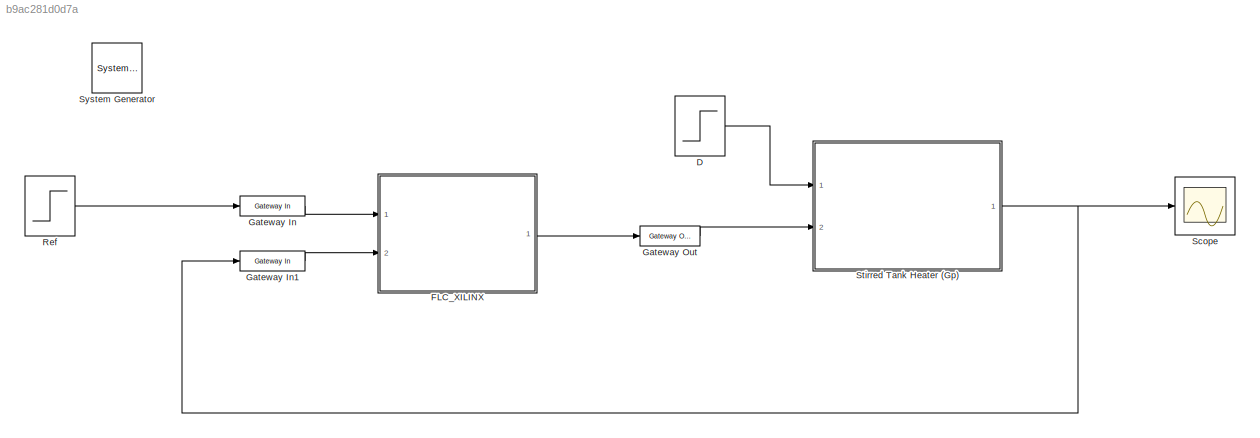
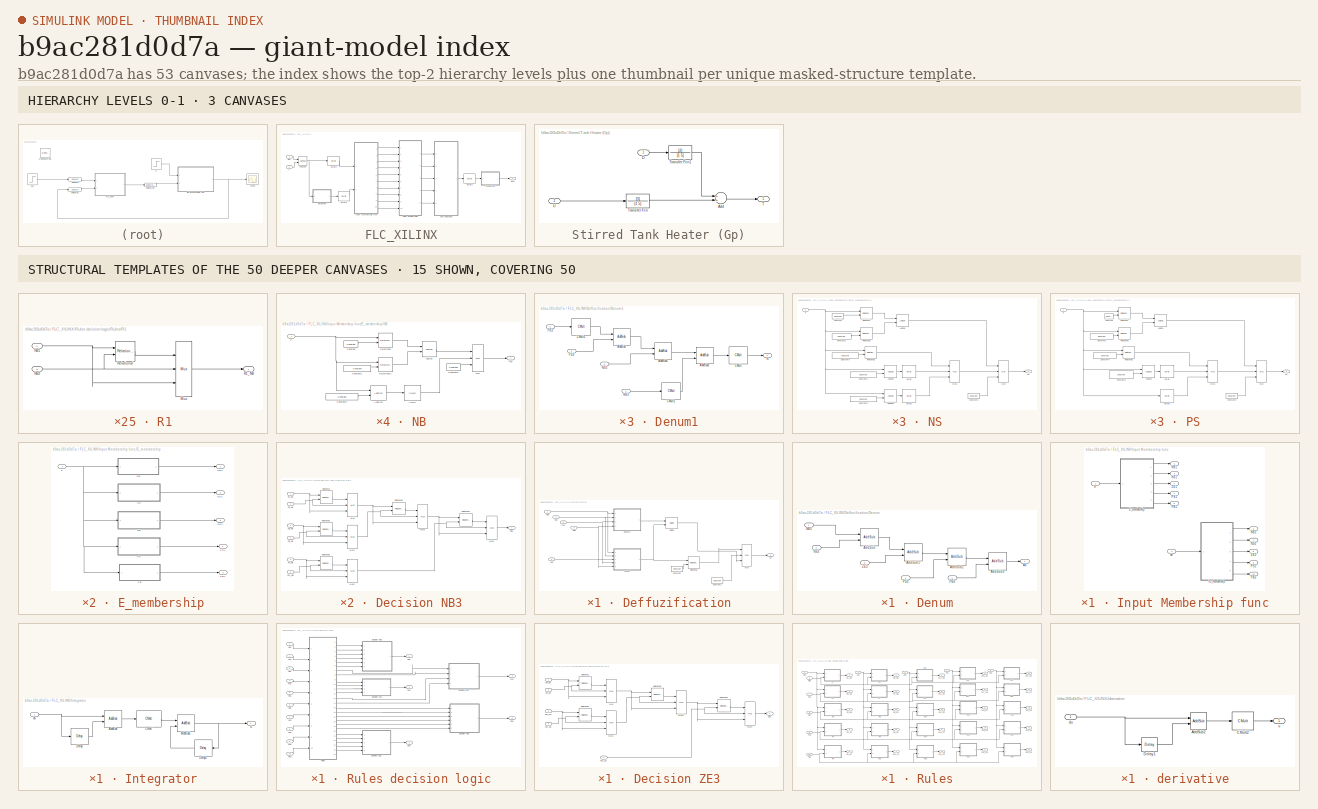
[diagram: thumbnail index - top-2 hierarchy levels (3 canvases) + 15 structural-template representatives of the remaining 50 canvases]
MODEL slx_b9ac281d0d7a
KIND model
CONFIG AbsTol = auto
CONFIG EnableMultiTasking = off
CONFIG FixedStep = auto
CONFIG MaxStep = auto
CONFIG MinStep = auto
CONFIG RelTol = 1e-3
CONFIG SampleTimeConstraint = Unconstrained
CONFIG Solver = VariableStepAuto
CONFIG SolverName = VariableStepAuto
CONFIG StartTime = 0.0
CONFIG StopTime = 4
BLOCK [Reference]  System Generator  REF=xbsIndex_r4/ System Generator
  AttributesFormatString = System\nGenerator
  Ports = []
  SourceBlock = xbsIndex_r4/ System Generator
  SourceType = Xilinx System Generator Block
  Tag = genX
  UserDataPersistent = on
BLOCK [Step] D
  After = 0
  SampleTime = 0.01
  Time = 2
BLOCK [SubSystem] FLC_XILINX
  Ports = [2, 1]
  RequestExecContextInheritance = off
  Variant = off
BLOCK [Reference] FLC_XILINX/AddSub2  REF=xbsIndex_r4/AddSub
  Ports = [2, 1]
  SourceBlock = xbsIndex_r4/AddSub
  SourceType = Xilinx Adder/Subtracter Block
BLOCK [Reference] FLC_XILINX/CMult1  REF=xbsIndex_r4/CMult
  Ports = [1, 1]
  SourceBlock = xbsIndex_r4/CMult
  SourceType = Xilinx Constant Multiplier Block
BLOCK [Reference] FLC_XILINX/CMult2  REF=xbsIndex_r4/CMult
  Ports = [1, 1]
  SourceBlock = xbsIndex_r4/CMult
  SourceType = Xilinx Constant Multiplier Block
BLOCK [Reference] FLC_XILINX/CMult3  REF=xbsIndex_r4/CMult
  Ports = [1, 1]
  SourceBlock = xbsIndex_r4/CMult
  SourceType = Xilinx Constant Multiplier Block
BLOCK [SubSystem] FLC_XILINX/Deffuzification
  Ports = [5, 1]
  RequestExecContextInheritance = off
  Variant = off
BLOCK [Reference] FLC_XILINX/Deffuzification/Constant  REF=xbsIndex_r4/Constant
  Ports = [0, 1]
  SourceBlock = xbsIndex_r4/Constant
  SourceType = Xilinx Constant Block Block
BLOCK [Reference] FLC_XILINX/Deffuzification/Constant1  REF=xbsIndex_r4/Constant
  Ports = [0, 1]
  SourceBlock = xbsIndex_r4/Constant
  SourceType = Xilinx Constant Block Block
BLOCK [SubSystem] FLC_XILINX/Deffuzification/Denum
  Ports = [5, 1]
  RequestExecContextInheritance = off
  Variant = off
BLOCK [Outport] FLC_XILINX/Deffuzification/Denum/A6
  IconDisplay = Port number
BLOCK [Reference] FLC_XILINX/Deffuzification/Denum/AddSub  REF=xbsIndex_r4/AddSub
  Ports = [2, 1]
  SourceBlock = xbsIndex_r4/AddSub
  SourceType = Xilinx Adder/Subtracter Block
BLOCK [Reference] FLC_XILINX/Deffuzification/Denum/AddSub1  REF=xbsIndex_r4/AddSub
  Ports = [2, 1]
  SourceBlock = xbsIndex_r4/AddSub
  SourceType = Xilinx Adder/Subtracter Block
BLOCK [Reference] FLC_XILINX/Deffuzification/Denum/AddSub2  REF=xbsIndex_r4/AddSub
  Ports = [2, 1]
  SourceBlock = xbsIndex_r4/AddSub
  SourceType = Xilinx Adder/Subtracter Block
BLOCK [Reference] FLC_XILINX/Deffuzification/Denum/AddSub3  REF=xbsIndex_r4/AddSub
  Ports = [2, 1]
  SourceBlock = xbsIndex_r4/AddSub
  SourceType = Xilinx Adder/Subtracter Block
BLOCK [Inport] FLC_XILINX/Deffuzification/Denum/NB3
  IconDisplay = Port number
BLOCK [Inport] FLC_XILINX/Deffuzification/Denum/NS3
  IconDisplay = Port number
  Port = 2
BLOCK [Inport] FLC_XILINX/Deffuzification/Denum/PB3
  IconDisplay = Port number
  Port = 5
BLOCK [Inport] FLC_XILINX/Deffuzification/Denum/PS3
  IconDisplay = Port number
  Port = 4
BLOCK [Inport] FLC_XILINX/Deffuzification/Denum/ZE3
  IconDisplay = Port number
  Port = 3
BLOCK [SubSystem] FLC_XILINX/Deffuzification/Denum1
  Ports = [4, 1]
  RequestExecContextInheritance = off
  Variant = off
BLOCK [Reference] FLC_XILINX/Deffuzification/Denum1/AddSub  REF=xbsIndex_r4/AddSub
  Ports = [2, 1]
  SourceBlock = xbsIndex_r4/AddSub
  SourceType = Xilinx Adder/Subtracter Block
BLOCK [Reference] FLC_XILINX/Deffuzification/Denum1/AddSub1  REF=xbsIndex_r4/AddSub
  Ports = [2, 1]
  SourceBlock = xbsIndex_r4/AddSub
  SourceType = Xilinx Adder/Subtracter Block
BLOCK [Reference] FLC_XILINX/Deffuzification/Denum1/AddSub2  REF=xbsIndex_r4/AddSub
  Ports = [2, 1]
  SourceBlock = xbsIndex_r4/AddSub
  SourceType = Xilinx Adder/Subtracter Block
BLOCK [Reference] FLC_XILINX/Deffuzification/Denum1/CMult  REF=xbsIndex_r4/CMult
  Ports = [1, 1]
  SourceBlock = xbsIndex_r4/CMult
  SourceType = Xilinx Constant Multiplier Block
BLOCK [Reference] FLC_XILINX/Deffuzification/Denum1/CMult1  REF=xbsIndex_r4/CMult
  Ports = [1, 1]
  SourceBlock = xbsIndex_r4/CMult
  SourceType = Xilinx Constant Multiplier Block
BLOCK [Reference] FLC_XILINX/Deffuzification/Denum1/CMult2  REF=xbsIndex_r4/CMult
  Ports = [1, 1]
  SourceBlock = xbsIndex_r4/CMult
  SourceType = Xilinx Constant Multiplier Block
BLOCK [Outport] FLC_XILINX/Deffuzification/Denum1/N
  IconDisplay = Port number
BLOCK [Inport] FLC_XILINX/Deffuzification/Denum1/NB3
  IconDisplay = Port number
BLOCK [Inport] FLC_XILINX/Deffuzification/Denum1/NS3
  IconDisplay = Port number
  Port = 2
BLOCK [Inport] FLC_XILINX/Deffuzification/Denum1/PB3
  IconDisplay = Port number
  Port = 4
BLOCK [Inport] FLC_XILINX/Deffuzification/Denum1/PS3
  IconDisplay = Port number
  Port = 3
BLOCK [Reference] FLC_XILINX/Deffuzification/Divide  REF=xbsIndex_r4/Divide
  Ports = [2, 1]
  SourceBlock = xbsIndex_r4/Divide
  SourceType = Xilinx Divider Block
BLOCK [Reference] FLC_XILINX/Deffuzification/Mux  REF=xbsIndex_r4/Mux
  Ports = [3, 1]
  SourceBlock = xbsIndex_r4/Mux
  SourceType = Xilinx Bus Multiplexer Block
BLOCK [Inport] FLC_XILINX/Deffuzification/NB3
  IconDisplay = Port number
BLOCK [Inport] FLC_XILINX/Deffuzification/NS3
  IconDisplay = Port number
  Port = 2
BLOCK [Inport] FLC_XILINX/Deffuzification/PB3
  IconDisplay = Port number
  Port = 5
BLOCK [Inport] FLC_XILINX/Deffuzification/PS3
  IconDisplay = Port number
  Port = 4
BLOCK [Reference] FLC_XILINX/Deffuzification/Relational  REF=xbsIndex_r4/Relational
  Ports = [2, 1]
  SourceBlock = xbsIndex_r4/Relational
  SourceType = Xilinx Arithmetic Relational Operator Block
BLOCK [Inport] FLC_XILINX/Deffuzification/ZE3
  IconDisplay = Port number
  Port = 3
BLOCK [Outport] FLC_XILINX/Deffuzification/du
  IconDisplay = Port number
BLOCK [SubSystem] FLC_XILINX/Input Membership func
  Ports = [2, 10]
  RequestExecContextInheritance = off
  Variant = off
BLOCK [SubSystem] FLC_XILINX/Input Membership func/E_membership
  Ports = [1, 5]
  RequestExecContextInheritance = off
  Variant = off
BLOCK [SubSystem] FLC_XILINX/Input Membership func/E_membership/NB
  Ports = [1, 1]
  RequestExecContextInheritance = off
  Variant = off
BLOCK [Reference] FLC_XILINX/Input Membership func/E_membership/NB/AddSub  REF=xbsIndex_r4/AddSub
  Ports = [2, 1]
  SourceBlock = xbsIndex_r4/AddSub
  SourceType = Xilinx Adder/Subtracter Block
BLOCK [Reference] FLC_XILINX/Input Membership func/E_membership/NB/CMult  REF=xbsIndex_r4/CMult
  Ports = [1, 1]
  SourceBlock = xbsIndex_r4/CMult
  SourceType = Xilinx Constant Multiplier Block
BLOCK [Reference] FLC_XILINX/Input Membership func/E_membership/NB/Constant  REF=xbsIndex_r4/Constant
  Ports = [0, 1]
  SourceBlock = xbsIndex_r4/Constant
  SourceType = Xilinx Constant Block Block
BLOCK [Reference] FLC_XILINX/Input Membership func/E_membership/NB/Constant1  REF=xbsIndex_r4/Constant
  Ports = [0, 1]
  SourceBlock = xbsIndex_r4/Constant
  SourceType = Xilinx Constant Block Block
BLOCK [Reference] FLC_XILINX/Input Membership func/E_membership/NB/Constant2  REF=xbsIndex_r4/Constant
  Ports = [0, 1]
  SourceBlock = xbsIndex_r4/Constant
  SourceType = Xilinx Constant Block Block
BLOCK [Reference] FLC_XILINX/Input Membership func/E_membership/NB/Constant3  REF=xbsIndex_r4/Constant
  Ports = [0, 1]
  SourceBlock = xbsIndex_r4/Constant
  SourceType = Xilinx Constant Block Block
BLOCK [Reference] FLC_XILINX/Input Membership func/E_membership/NB/Logical  REF=xbsIndex_r4/Logical
  Ports = [2, 1]
  SourceBlock = xbsIndex_r4/Logical
  SourceType = Xilinx Logical Block Block
BLOCK [Reference] FLC_XILINX/Input Membership func/E_membership/NB/Mux  REF=xbsIndex_r4/Mux
  Ports = [3, 1]
  SourceBlock = xbsIndex_r4/Mux
  SourceType = Xilinx Bus Multiplexer Block
BLOCK [Outport] FLC_XILINX/Input Membership func/E_membership/NB/NB
  IconDisplay = Port number
BLOCK [Reference] FLC_XILINX/Input Membership func/E_membership/NB/Relational  REF=xbsIndex_r4/Relational
  Ports = [2, 1]
  SourceBlock = xbsIndex_r4/Relational
  SourceType = Xilinx Arithmetic Relational Operator Block
BLOCK [Reference] FLC_XILINX/Input Membership func/E_membership/NB/Relational1  REF=xbsIndex_r4/Relational
  Ports = [2, 1]
  SourceBlock = xbsIndex_r4/Relational
  SourceType = Xilinx Arithmetic Relational Operator Block
BLOCK [Inport] FLC_XILINX/Input Membership func/E_membership/NB/e
  IconDisplay = Port number
BLOCK [Outport] FLC_XILINX/Input Membership func/E_membership/NB1
  IconDisplay = Port number
BLOCK [SubSystem] FLC_XILINX/Input Membership func/E_membership/NS
  Ports = [1, 1]
  RequestExecContextInheritance = off
  Variant = off
BLOCK [Reference] FLC_XILINX/Input Membership func/E_membership/NS/AddSub  REF=xbsIndex_r4/AddSub
  Ports = [2, 1]
  SourceBlock = xbsIndex_r4/AddSub
  SourceType = Xilinx Adder/Subtracter Block
BLOCK [Reference] FLC_XILINX/Input Membership func/E_membership/NS/AddSub1  REF=xbsIndex_r4/AddSub
  Ports = [2, 1]
  SourceBlock = xbsIndex_r4/AddSub
  SourceType = Xilinx Adder/Subtracter Block
BLOCK [Reference] FLC_XILINX/Input Membership func/E_membership/NS/CMult  REF=xbsIndex_r4/CMult
  Ports = [1, 1]
  SourceBlock = xbsIndex_r4/CMult
  SourceType = Xilinx Constant Multiplier Block
BLOCK [Reference] FLC_XILINX/Input Membership func/E_membership/NS/CMult1  REF=xbsIndex_r4/CMult
  Ports = [1, 1]
  SourceBlock = xbsIndex_r4/CMult
  SourceType = Xilinx Constant Multiplier Block
BLOCK [Reference] FLC_XILINX/Input Membership func/E_membership/NS/Constant  REF=xbsIndex_r4/Constant
  Ports = [0, 1]
  SourceBlock = xbsIndex_r4/Constant
  SourceType = Xilinx Constant Block Block
BLOCK [Reference] FLC_XILINX/Input Membership func/E_membership/NS/Constant1  REF=xbsIndex_r4/Constant
  Ports = [0, 1]
  SourceBlock = xbsIndex_r4/Constant
  SourceType = Xilinx Constant Block Block
BLOCK [Reference] FLC_XILINX/Input Membership func/E_membership/NS/Constant2  REF=xbsIndex_r4/Constant
  Ports = [0, 1]
  SourceBlock = xbsIndex_r4/Constant
  SourceType = Xilinx Constant Block Block
BLOCK [Reference] FLC_XILINX/Input Membership func/E_membership/NS/Constant3  REF=xbsIndex_r4/Constant
  Ports = [0, 1]
  SourceBlock = xbsIndex_r4/Constant
  SourceType = Xilinx Constant Block Block
BLOCK [Reference] FLC_XILINX/Input Membership func/E_membership/NS/Constant4  REF=xbsIndex_r4/Constant
  Ports = [0, 1]
  SourceBlock = xbsIndex_r4/Constant
  SourceType = Xilinx Constant Block Block
BLOCK [Reference] FLC_XILINX/Input Membership func/E_membership/NS/Constant5  REF=xbsIndex_r4/Constant
  Ports = [0, 1]
  SourceBlock = xbsIndex_r4/Constant
  SourceType = Xilinx Constant Block Block
BLOCK [Reference] FLC_XILINX/Input Membership func/E_membership/NS/Logical  REF=xbsIndex_r4/Logical
  Ports = [2, 1]
  SourceBlock = xbsIndex_r4/Logical
  SourceType = Xilinx Logical Block Block
BLOCK [Reference] FLC_XILINX/Input Membership func/E_membership/NS/Mux  REF=xbsIndex_r4/Mux
  Ports = [3, 1]
  SourceBlock = xbsIndex_r4/Mux
  SourceType = Xilinx Bus Multiplexer Block
BLOCK [Reference] FLC_XILINX/Input Membership func/E_membership/NS/Mux1  REF=xbsIndex_r4/Mux
  Ports = [3, 1]
  SourceBlock = xbsIndex_r4/Mux
  SourceType = Xilinx Bus Multiplexer Block
BLOCK [Outport] FLC_XILINX/Input Membership func/E_membership/NS/NS
  IconDisplay = Port number
BLOCK [Reference] FLC_XILINX/Input Membership func/E_membership/NS/Relational  REF=xbsIndex_r4/Relational
  Ports = [2, 1]
  SourceBlock = xbsIndex_r4/Relational
  SourceType = Xilinx Arithmetic Relational Operator Block
BLOCK [Reference] FLC_XILINX/Input Membership func/E_membership/NS/Relational1  REF=xbsIndex_r4/Relational
  Ports = [2, 1]
  SourceBlock = xbsIndex_r4/Relational
  SourceType = Xilinx Arithmetic Relational Operator Block
BLOCK [Reference] FLC_XILINX/Input Membership func/E_membership/NS/Relational2  REF=xbsIndex_r4/Relational
  Ports = [2, 1]
  SourceBlock = xbsIndex_r4/Relational
  SourceType = Xilinx Arithmetic Relational Operator Block
BLOCK [Inport] FLC_XILINX/Input Membership func/E_membership/NS/e
  IconDisplay = Port number
BLOCK [Outport] FLC_XILINX/Input Membership func/E_membership/NS1
  IconDisplay = Port number
  Port = 2
BLOCK [SubSystem] FLC_XILINX/Input Membership func/E_membership/PB
  Ports = [1, 1]
  RequestExecContextInheritance = off
  Variant = off
BLOCK [Reference] FLC_XILINX/Input Membership func/E_membership/PB/AddSub  REF=xbsIndex_r4/AddSub
  Ports = [2, 1]
  SourceBlock = xbsIndex_r4/AddSub
  SourceType = Xilinx Adder/Subtracter Block
BLOCK [Reference] FLC_XILINX/Input Membership func/E_membership/PB/CMult  REF=xbsIndex_r4/CMult
  Ports = [1, 1]
  SourceBlock = xbsIndex_r4/CMult
  SourceType = Xilinx Constant Multiplier Block
BLOCK [Reference] FLC_XILINX/Input Membership func/E_membership/PB/Constant  REF=xbsIndex_r4/Constant
  Ports = [0, 1]
  SourceBlock = xbsIndex_r4/Constant
  SourceType = Xilinx Constant Block Block
BLOCK [Reference] FLC_XILINX/Input Membership func/E_membership/PB/Constant1  REF=xbsIndex_r4/Constant
  Ports = [0, 1]
  SourceBlock = xbsIndex_r4/Constant
  SourceType = Xilinx Constant Block Block
BLOCK [Reference] FLC_XILINX/Input Membership func/E_membership/PB/Constant2  REF=xbsIndex_r4/Constant
  Ports = [0, 1]
  SourceBlock = xbsIndex_r4/Constant
  SourceType = Xilinx Constant Block Block
BLOCK [Reference] FLC_XILINX/Input Membership func/E_membership/PB/Constant3  REF=xbsIndex_r4/Constant
  Ports = [0, 1]
  SourceBlock = xbsIndex_r4/Constant
  SourceType = Xilinx Constant Block Block
BLOCK [Reference] FLC_XILINX/Input Membership func/E_membership/PB/Logical  REF=xbsIndex_r4/Logical
  Ports = [2, 1]
  SourceBlock = xbsIndex_r4/Logical
  SourceType = Xilinx Logical Block Block
BLOCK [Reference] FLC_XILINX/Input Membership func/E_membership/PB/Mux  REF=xbsIndex_r4/Mux
  Ports = [3, 1]
  SourceBlock = xbsIndex_r4/Mux
  SourceType = Xilinx Bus Multiplexer Block
BLOCK [Outport] FLC_XILINX/Input Membership func/E_membership/PB/PB
  IconDisplay = Port number
BLOCK [Reference] FLC_XILINX/Input Membership func/E_membership/PB/Relational  REF=xbsIndex_r4/Relational
  Ports = [2, 1]
  SourceBlock = xbsIndex_r4/Relational
  SourceType = Xilinx Arithmetic Relational Operator Block
BLOCK [Reference] FLC_XILINX/Input Membership func/E_membership/PB/Relational1  REF=xbsIndex_r4/Relational
  Ports = [2, 1]
  SourceBlock = xbsIndex_r4/Relational
  SourceType = Xilinx Arithmetic Relational Operator Block
BLOCK [Inport] FLC_XILINX/Input Membership func/E_membership/PB/e
  IconDisplay = Port number
BLOCK [Outport] FLC_XILINX/Input Membership func/E_membership/PB1
  IconDisplay = Port number
  Port = 5
BLOCK [SubSystem] FLC_XILINX/Input Membership func/E_membership/PS
  Ports = [1, 1]
  RequestExecContextInheritance = off
  Variant = off
BLOCK [Reference] FLC_XILINX/Input Membership func/E_membership/PS/AddSub  REF=xbsIndex_r4/AddSub
  Ports = [2, 1]
  SourceBlock = xbsIndex_r4/AddSub
  SourceType = Xilinx Adder/Subtracter Block
BLOCK [Reference] FLC_XILINX/Input Membership func/E_membership/PS/CMult  REF=xbsIndex_r4/CMult
  Ports = [1, 1]
  SourceBlock = xbsIndex_r4/CMult
  SourceType = Xilinx Constant Multiplier Block
BLOCK [Reference] FLC_XILINX/Input Membership func/E_membership/PS/CMult1  REF=xbsIndex_r4/CMult
  Ports = [1, 1]
  SourceBlock = xbsIndex_r4/CMult
  SourceType = Xilinx Constant Multiplier Block
BLOCK [Reference] FLC_XILINX/Input Membership func/E_membership/PS/Constant  REF=xbsIndex_r4/Constant
  Ports = [0, 1]
  SourceBlock = xbsIndex_r4/Constant
  SourceType = Xilinx Constant Block Block
BLOCK [Reference] FLC_XILINX/Input Membership func/E_membership/PS/Constant1  REF=xbsIndex_r4/Constant
  Ports = [0, 1]
  SourceBlock = xbsIndex_r4/Constant
  SourceType = Xilinx Constant Block Block
BLOCK [Reference] FLC_XILINX/Input Membership func/E_membership/PS/Constant2  REF=xbsIndex_r4/Constant
  Ports = [0, 1]
  SourceBlock = xbsIndex_r4/Constant
  SourceType = Xilinx Constant Block Block
BLOCK [Reference] FLC_XILINX/Input Membership func/E_membership/PS/Constant3  REF=xbsIndex_r4/Constant
  Ports = [0, 1]
  SourceBlock = xbsIndex_r4/Constant
  SourceType = Xilinx Constant Block Block
BLOCK [Reference] FLC_XILINX/Input Membership func/E_membership/PS/Constant4  REF=xbsIndex_r4/Constant
  Ports = [0, 1]
  SourceBlock = xbsIndex_r4/Constant
  SourceType = Xilinx Constant Block Block
BLOCK [Reference] FLC_XILINX/Input Membership func/E_membership/PS/Logical  REF=xbsIndex_r4/Logical
  Ports = [2, 1]
  SourceBlock = xbsIndex_r4/Logical
  SourceType = Xilinx Logical Block Block
BLOCK [Reference] FLC_XILINX/Input Membership func/E_membership/PS/Mux  REF=xbsIndex_r4/Mux
  Ports = [3, 1]
  SourceBlock = xbsIndex_r4/Mux
  SourceType = Xilinx Bus Multiplexer Block
BLOCK [Reference] FLC_XILINX/Input Membership func/E_membership/PS/Mux1  REF=xbsIndex_r4/Mux
  Ports = [3, 1]
  SourceBlock = xbsIndex_r4/Mux
  SourceType = Xilinx Bus Multiplexer Block
BLOCK [Outport] FLC_XILINX/Input Membership func/E_membership/PS/PS
  IconDisplay = Port number
BLOCK [Reference] FLC_XILINX/Input Membership func/E_membership/PS/Relational  REF=xbsIndex_r4/Relational
  Ports = [2, 1]
  SourceBlock = xbsIndex_r4/Relational
  SourceType = Xilinx Arithmetic Relational Operator Block
BLOCK [Reference] FLC_XILINX/Input Membership func/E_membership/PS/Relational1  REF=xbsIndex_r4/Relational
  Ports = [2, 1]
  SourceBlock = xbsIndex_r4/Relational
  SourceType = Xilinx Arithmetic Relational Operator Block
BLOCK [Reference] FLC_XILINX/Input Membership func/E_membership/PS/Relational2  REF=xbsIndex_r4/Relational
  Ports = [2, 1]
  SourceBlock = xbsIndex_r4/Relational
  SourceType = Xilinx Arithmetic Relational Operator Block
BLOCK [Inport] FLC_XILINX/Input Membership func/E_membership/PS/e
  IconDisplay = Port number
BLOCK [Outport] FLC_XILINX/Input Membership func/E_membership/PS1
  IconDisplay = Port number
  Port = 4
BLOCK [SubSystem] FLC_XILINX/Input Membership func/E_membership/ZE
  Ports = [1, 1]
  RequestExecContextInheritance = off
  Variant = off
BLOCK [Reference] FLC_XILINX/Input Membership func/E_membership/ZE/AddSub  REF=xbsIndex_r4/AddSub
  Ports = [2, 1]
  SourceBlock = xbsIndex_r4/AddSub
  SourceType = Xilinx Adder/Subtracter Block
BLOCK [Reference] FLC_XILINX/Input Membership func/E_membership/ZE/AddSub1  REF=xbsIndex_r4/AddSub
  Ports = [2, 1]
  SourceBlock = xbsIndex_r4/AddSub
  SourceType = Xilinx Adder/Subtracter Block
BLOCK [Reference] FLC_XILINX/Input Membership func/E_membership/ZE/CMult  REF=xbsIndex_r4/CMult
  Ports = [1, 1]
  SourceBlock = xbsIndex_r4/CMult
  SourceType = Xilinx Constant Multiplier Block
BLOCK [Reference] FLC_XILINX/Input Membership func/E_membership/ZE/CMult1  REF=xbsIndex_r4/CMult
  Ports = [1, 1]
  SourceBlock = xbsIndex_r4/CMult
  SourceType = Xilinx Constant Multiplier Block
BLOCK [Reference] FLC_XILINX/Input Membership func/E_membership/ZE/Constant  REF=xbsIndex_r4/Constant
  Ports = [0, 1]
  SourceBlock = xbsIndex_r4/Constant
  SourceType = Xilinx Constant Block Block
BLOCK [Reference] FLC_XILINX/Input Membership func/E_membership/ZE/Constant1  REF=xbsIndex_r4/Constant
  Ports = [0, 1]
  SourceBlock = xbsIndex_r4/Constant
  SourceType = Xilinx Constant Block Block
BLOCK [Reference] FLC_XILINX/Input Membership func/E_membership/ZE/Constant2  REF=xbsIndex_r4/Constant
  Ports = [0, 1]
  SourceBlock = xbsIndex_r4/Constant
  SourceType = Xilinx Constant Block Block
BLOCK [Reference] FLC_XILINX/Input Membership func/E_membership/ZE/Constant3  REF=xbsIndex_r4/Constant
  Ports = [0, 1]
  SourceBlock = xbsIndex_r4/Constant
  SourceType = Xilinx Constant Block Block
BLOCK [Reference] FLC_XILINX/Input Membership func/E_membership/ZE/Constant4  REF=xbsIndex_r4/Constant
  Ports = [0, 1]
  SourceBlock = xbsIndex_r4/Constant
  SourceType = Xilinx Constant Block Block
BLOCK [Reference] FLC_XILINX/Input Membership func/E_membership/ZE/Constant5  REF=xbsIndex_r4/Constant
  Ports = [0, 1]
  SourceBlock = xbsIndex_r4/Constant
  SourceType = Xilinx Constant Block Block
BLOCK [Reference] FLC_XILINX/Input Membership func/E_membership/ZE/Logical  REF=xbsIndex_r4/Logical
  Ports = [2, 1]
  SourceBlock = xbsIndex_r4/Logical
  SourceType = Xilinx Logical Block Block
BLOCK [Reference] FLC_XILINX/Input Membership func/E_membership/ZE/Mux  REF=xbsIndex_r4/Mux
  Ports = [3, 1]
  SourceBlock = xbsIndex_r4/Mux
  SourceType = Xilinx Bus Multiplexer Block
BLOCK [Reference] FLC_XILINX/Input Membership func/E_membership/ZE/Mux1  REF=xbsIndex_r4/Mux
  Ports = [3, 1]
  SourceBlock = xbsIndex_r4/Mux
  SourceType = Xilinx Bus Multiplexer Block
BLOCK [Reference] FLC_XILINX/Input Membership func/E_membership/ZE/Relational  REF=xbsIndex_r4/Relational
  Ports = [2, 1]
  SourceBlock = xbsIndex_r4/Relational
  SourceType = Xilinx Arithmetic Relational Operator Block
BLOCK [Reference] FLC_XILINX/Input Membership func/E_membership/ZE/Relational1  REF=xbsIndex_r4/Relational
  Ports = [2, 1]
  SourceBlock = xbsIndex_r4/Relational
  SourceType = Xilinx Arithmetic Relational Operator Block
BLOCK [Reference] FLC_XILINX/Input Membership func/E_membership/ZE/Relational2  REF=xbsIndex_r4/Relational
  Ports = [2, 1]
  SourceBlock = xbsIndex_r4/Relational
  SourceType = Xilinx Arithmetic Relational Operator Block
BLOCK [Outport] FLC_XILINX/Input Membership func/E_membership/ZE/ZE
  IconDisplay = Port number
BLOCK [Inport] FLC_XILINX/Input Membership func/E_membership/ZE/e
  IconDisplay = Port number
BLOCK [Outport] FLC_XILINX/Input Membership func/E_membership/ZE1
  IconDisplay = Port number
  Port = 3
BLOCK [Inport] FLC_XILINX/Input Membership func/E_membership/e
  IconDisplay = Port number
BLOCK [SubSystem] FLC_XILINX/Input Membership func/IE_membership
  Ports = [1, 5]
  RequestExecContextInheritance = off
  Variant = off
BLOCK [SubSystem] FLC_XILINX/Input Membership func/IE_membership/NB
  Ports = [1, 1]
  RequestExecContextInheritance = off
  Variant = off
BLOCK [Reference] FLC_XILINX/Input Membership func/IE_membership/NB/AddSub  REF=xbsIndex_r4/AddSub
  Ports = [2, 1]
  SourceBlock = xbsIndex_r4/AddSub
  SourceType = Xilinx Adder/Subtracter Block
BLOCK [Reference] FLC_XILINX/Input Membership func/IE_membership/NB/CMult  REF=xbsIndex_r4/CMult
  Ports = [1, 1]
  SourceBlock = xbsIndex_r4/CMult
  SourceType = Xilinx Constant Multiplier Block
BLOCK [Reference] FLC_XILINX/Input Membership func/IE_membership/NB/Constant  REF=xbsIndex_r4/Constant
  Ports = [0, 1]
  SourceBlock = xbsIndex_r4/Constant
  SourceType = Xilinx Constant Block Block
BLOCK [Reference] FLC_XILINX/Input Membership func/IE_membership/NB/Constant1  REF=xbsIndex_r4/Constant
  Ports = [0, 1]
  SourceBlock = xbsIndex_r4/Constant
  SourceType = Xilinx Constant Block Block
BLOCK [Reference] FLC_XILINX/Input Membership func/IE_membership/NB/Constant2  REF=xbsIndex_r4/Constant
  Ports = [0, 1]
  SourceBlock = xbsIndex_r4/Constant
  SourceType = Xilinx Constant Block Block
BLOCK [Reference] FLC_XILINX/Input Membership func/IE_membership/NB/Constant3  REF=xbsIndex_r4/Constant
  Ports = [0, 1]
  SourceBlock = xbsIndex_r4/Constant
  SourceType = Xilinx Constant Block Block
BLOCK [Reference] FLC_XILINX/Input Membership func/IE_membership/NB/Logical  REF=xbsIndex_r4/Logical
  Ports = [2, 1]
  SourceBlock = xbsIndex_r4/Logical
  SourceType = Xilinx Logical Block Block
BLOCK [Reference] FLC_XILINX/Input Membership func/IE_membership/NB/Mux  REF=xbsIndex_r4/Mux
  Ports = [3, 1]
  SourceBlock = xbsIndex_r4/Mux
  SourceType = Xilinx Bus Multiplexer Block
BLOCK [Outport] FLC_XILINX/Input Membership func/IE_membership/NB/NB
  IconDisplay = Port number
BLOCK [Reference] FLC_XILINX/Input Membership func/IE_membership/NB/Relational  REF=xbsIndex_r4/Relational
  Ports = [2, 1]
  SourceBlock = xbsIndex_r4/Relational
  SourceType = Xilinx Arithmetic Relational Operator Block
BLOCK [Reference] FLC_XILINX/Input Membership func/IE_membership/NB/Relational1  REF=xbsIndex_r4/Relational
  Ports = [2, 1]
  SourceBlock = xbsIndex_r4/Relational
  SourceType = Xilinx Arithmetic Relational Operator Block
BLOCK [Inport] FLC_XILINX/Input Membership func/IE_membership/NB/de
  IconDisplay = Port number
BLOCK [Outport] FLC_XILINX/Input Membership func/IE_membership/NB2
  IconDisplay = Port number
BLOCK [SubSystem] FLC_XILINX/Input Membership func/IE_membership/NS
  Ports = [1, 1]
  RequestExecContextInheritance = off
  Variant = off
BLOCK [Reference] FLC_XILINX/Input Membership func/IE_membership/NS/AddSub1  REF=xbsIndex_r4/AddSub
  Ports = [2, 1]
  SourceBlock = xbsIndex_r4/AddSub
  SourceType = Xilinx Adder/Subtracter Block
BLOCK [Reference] FLC_XILINX/Input Membership func/IE_membership/NS/CMult  REF=xbsIndex_r4/CMult
  Ports = [1, 1]
  SourceBlock = xbsIndex_r4/CMult
  SourceType = Xilinx Constant Multiplier Block
BLOCK [Reference] FLC_XILINX/Input Membership func/IE_membership/NS/CMult1  REF=xbsIndex_r4/CMult
  Ports = [1, 1]
  SourceBlock = xbsIndex_r4/CMult
  SourceType = Xilinx Constant Multiplier Block
BLOCK [Reference] FLC_XILINX/Input Membership func/IE_membership/NS/Constant  REF=xbsIndex_r4/Constant
  Ports = [0, 1]
  SourceBlock = xbsIndex_r4/Constant
  SourceType = Xilinx Constant Block Block
BLOCK [Reference] FLC_XILINX/Input Membership func/IE_membership/NS/Constant1  REF=xbsIndex_r4/Constant
  Ports = [0, 1]
  SourceBlock = xbsIndex_r4/Constant
  SourceType = Xilinx Constant Block Block
BLOCK [Reference] FLC_XILINX/Input Membership func/IE_membership/NS/Constant3  REF=xbsIndex_r4/Constant
  Ports = [0, 1]
  SourceBlock = xbsIndex_r4/Constant
  SourceType = Xilinx Constant Block Block
BLOCK [Reference] FLC_XILINX/Input Membership func/IE_membership/NS/Constant4  REF=xbsIndex_r4/Constant
  Ports = [0, 1]
  SourceBlock = xbsIndex_r4/Constant
  SourceType = Xilinx Constant Block Block
BLOCK [Reference] FLC_XILINX/Input Membership func/IE_membership/NS/Constant5  REF=xbsIndex_r4/Constant
  Ports = [0, 1]
  SourceBlock = xbsIndex_r4/Constant
  SourceType = Xilinx Constant Block Block
BLOCK [Reference] FLC_XILINX/Input Membership func/IE_membership/NS/Logical  REF=xbsIndex_r4/Logical
  Ports = [2, 1]
  SourceBlock = xbsIndex_r4/Logical
  SourceType = Xilinx Logical Block Block
BLOCK [Reference] FLC_XILINX/Input Membership func/IE_membership/NS/Mux  REF=xbsIndex_r4/Mux
  Ports = [3, 1]
  SourceBlock = xbsIndex_r4/Mux
  SourceType = Xilinx Bus Multiplexer Block
BLOCK [Reference] FLC_XILINX/Input Membership func/IE_membership/NS/Mux1  REF=xbsIndex_r4/Mux
  Ports = [3, 1]
  SourceBlock = xbsIndex_r4/Mux
  SourceType = Xilinx Bus Multiplexer Block
BLOCK [Outport] FLC_XILINX/Input Membership func/IE_membership/NS/NS
  IconDisplay = Port number
BLOCK [Reference] FLC_XILINX/Input Membership func/IE_membership/NS/Relational  REF=xbsIndex_r4/Relational
  Ports = [2, 1]
  SourceBlock = xbsIndex_r4/Relational
  SourceType = Xilinx Arithmetic Relational Operator Block
BLOCK [Reference] FLC_XILINX/Input Membership func/IE_membership/NS/Relational1  REF=xbsIndex_r4/Relational
  Ports = [2, 1]
  SourceBlock = xbsIndex_r4/Relational
  SourceType = Xilinx Arithmetic Relational Operator Block
BLOCK [Reference] FLC_XILINX/Input Membership func/IE_membership/NS/Relational2  REF=xbsIndex_r4/Relational
  Ports = [2, 1]
  SourceBlock = xbsIndex_r4/Relational
  SourceType = Xilinx Arithmetic Relational Operator Block
BLOCK [Inport] FLC_XILINX/Input Membership func/IE_membership/NS/de
  IconDisplay = Port number
BLOCK [Outport] FLC_XILINX/Input Membership func/IE_membership/NS2
  IconDisplay = Port number
  Port = 2
BLOCK [SubSystem] FLC_XILINX/Input Membership func/IE_membership/PB
  Ports = [1, 1]
  RequestExecContextInheritance = off
  Variant = off
BLOCK [Reference] FLC_XILINX/Input Membership func/IE_membership/PB/AddSub  REF=xbsIndex_r4/AddSub
  Ports = [2, 1]
  SourceBlock = xbsIndex_r4/AddSub
  SourceType = Xilinx Adder/Subtracter Block
BLOCK [Reference] FLC_XILINX/Input Membership func/IE_membership/PB/CMult  REF=xbsIndex_r4/CMult
  Ports = [1, 1]
  SourceBlock = xbsIndex_r4/CMult
  SourceType = Xilinx Constant Multiplier Block
BLOCK [Reference] FLC_XILINX/Input Membership func/IE_membership/PB/Constant  REF=xbsIndex_r4/Constant
  Ports = [0, 1]
  SourceBlock = xbsIndex_r4/Constant
  SourceType = Xilinx Constant Block Block
BLOCK [Reference] FLC_XILINX/Input Membership func/IE_membership/PB/Constant1  REF=xbsIndex_r4/Constant
  Ports = [0, 1]
  SourceBlock = xbsIndex_r4/Constant
  SourceType = Xilinx Constant Block Block
BLOCK [Reference] FLC_XILINX/Input Membership func/IE_membership/PB/Constant2  REF=xbsIndex_r4/Constant
  Ports = [0, 1]
  SourceBlock = xbsIndex_r4/Constant
  SourceType = Xilinx Constant Block Block
BLOCK [Reference] FLC_XILINX/Input Membership func/IE_membership/PB/Constant3  REF=xbsIndex_r4/Constant
  Ports = [0, 1]
  SourceBlock = xbsIndex_r4/Constant
  SourceType = Xilinx Constant Block Block
BLOCK [Reference] FLC_XILINX/Input Membership func/IE_membership/PB/Logical  REF=xbsIndex_r4/Logical
  Ports = [2, 1]
  SourceBlock = xbsIndex_r4/Logical
  SourceType = Xilinx Logical Block Block
BLOCK [Reference] FLC_XILINX/Input Membership func/IE_membership/PB/Mux  REF=xbsIndex_r4/Mux
  Ports = [3, 1]
  SourceBlock = xbsIndex_r4/Mux
  SourceType = Xilinx Bus Multiplexer Block
BLOCK [Outport] FLC_XILINX/Input Membership func/IE_membership/PB/PB
  IconDisplay = Port number
BLOCK [Reference] FLC_XILINX/Input Membership func/IE_membership/PB/Relational  REF=xbsIndex_r4/Relational
  Ports = [2, 1]
  SourceBlock = xbsIndex_r4/Relational
  SourceType = Xilinx Arithmetic Relational Operator Block
BLOCK [Reference] FLC_XILINX/Input Membership func/IE_membership/PB/Relational1  REF=xbsIndex_r4/Relational
  Ports = [2, 1]
  SourceBlock = xbsIndex_r4/Relational
  SourceType = Xilinx Arithmetic Relational Operator Block
BLOCK [Inport] FLC_XILINX/Input Membership func/IE_membership/PB/de
  IconDisplay = Port number
BLOCK [Outport] FLC_XILINX/Input Membership func/IE_membership/PB2
  IconDisplay = Port number
  Port = 5
BLOCK [SubSystem] FLC_XILINX/Input Membership func/IE_membership/PS
  Ports = [1, 1]
  RequestExecContextInheritance = off
  Variant = off
BLOCK [Reference] FLC_XILINX/Input Membership func/IE_membership/PS/AddSub  REF=xbsIndex_r4/AddSub
  Ports = [2, 1]
  SourceBlock = xbsIndex_r4/AddSub
  SourceType = Xilinx Adder/Subtracter Block
BLOCK [Reference] FLC_XILINX/Input Membership func/IE_membership/PS/CMult  REF=xbsIndex_r4/CMult
  Ports = [1, 1]
  SourceBlock = xbsIndex_r4/CMult
  SourceType = Xilinx Constant Multiplier Block
BLOCK [Reference] FLC_XILINX/Input Membership func/IE_membership/PS/CMult1  REF=xbsIndex_r4/CMult
  Ports = [1, 1]
  SourceBlock = xbsIndex_r4/CMult
  SourceType = Xilinx Constant Multiplier Block
BLOCK [Reference] FLC_XILINX/Input Membership func/IE_membership/PS/Constant  REF=xbsIndex_r4/Constant
  Ports = [0, 1]
  SourceBlock = xbsIndex_r4/Constant
  SourceType = Xilinx Constant Block Block
BLOCK [Reference] FLC_XILINX/Input Membership func/IE_membership/PS/Constant1  REF=xbsIndex_r4/Constant
  Ports = [0, 1]
  SourceBlock = xbsIndex_r4/Constant
  SourceType = Xilinx Constant Block Block
BLOCK [Reference] FLC_XILINX/Input Membership func/IE_membership/PS/Constant2  REF=xbsIndex_r4/Constant
  Ports = [0, 1]
  SourceBlock = xbsIndex_r4/Constant
  SourceType = Xilinx Constant Block Block
BLOCK [Reference] FLC_XILINX/Input Membership func/IE_membership/PS/Constant3  REF=xbsIndex_r4/Constant
  Ports = [0, 1]
  SourceBlock = xbsIndex_r4/Constant
  SourceType = Xilinx Constant Block Block
BLOCK [Reference] FLC_XILINX/Input Membership func/IE_membership/PS/Constant4  REF=xbsIndex_r4/Constant
  Ports = [0, 1]
  SourceBlock = xbsIndex_r4/Constant
  SourceType = Xilinx Constant Block Block
BLOCK [Reference] FLC_XILINX/Input Membership func/IE_membership/PS/Logical  REF=xbsIndex_r4/Logical
  Ports = [2, 1]
  SourceBlock = xbsIndex_r4/Logical
  SourceType = Xilinx Logical Block Block
BLOCK [Reference] FLC_XILINX/Input Membership func/IE_membership/PS/Mux  REF=xbsIndex_r4/Mux
  Ports = [3, 1]
  SourceBlock = xbsIndex_r4/Mux
  SourceType = Xilinx Bus Multiplexer Block
BLOCK [Reference] FLC_XILINX/Input Membership func/IE_membership/PS/Mux1  REF=xbsIndex_r4/Mux
  Ports = [3, 1]
  SourceBlock = xbsIndex_r4/Mux
  SourceType = Xilinx Bus Multiplexer Block
BLOCK [Outport] FLC_XILINX/Input Membership func/IE_membership/PS/PS
  IconDisplay = Port number
BLOCK [Reference] FLC_XILINX/Input Membership func/IE_membership/PS/Relational  REF=xbsIndex_r4/Relational
  Ports = [2, 1]
  SourceBlock = xbsIndex_r4/Relational
  SourceType = Xilinx Arithmetic Relational Operator Block
BLOCK [Reference] FLC_XILINX/Input Membership func/IE_membership/PS/Relational1  REF=xbsIndex_r4/Relational
  Ports = [2, 1]
  SourceBlock = xbsIndex_r4/Relational
  SourceType = Xilinx Arithmetic Relational Operator Block
BLOCK [Reference] FLC_XILINX/Input Membership func/IE_membership/PS/Relational2  REF=xbsIndex_r4/Relational
  Ports = [2, 1]
  SourceBlock = xbsIndex_r4/Relational
  SourceType = Xilinx Arithmetic Relational Operator Block
BLOCK [Inport] FLC_XILINX/Input Membership func/IE_membership/PS/de
  IconDisplay = Port number
BLOCK [Outport] FLC_XILINX/Input Membership func/IE_membership/PS2
  IconDisplay = Port number
  Port = 4
BLOCK [SubSystem] FLC_XILINX/Input Membership func/IE_membership/ZE
  Ports = [1, 1]
  RequestExecContextInheritance = off
  Variant = off
BLOCK [Reference] FLC_XILINX/Input Membership func/IE_membership/ZE/AddSub  REF=xbsIndex_r4/AddSub
  Ports = [2, 1]
  SourceBlock = xbsIndex_r4/AddSub
  SourceType = Xilinx Adder/Subtracter Block
BLOCK [Reference] FLC_XILINX/Input Membership func/IE_membership/ZE/AddSub1  REF=xbsIndex_r4/AddSub
  Ports = [2, 1]
  SourceBlock = xbsIndex_r4/AddSub
  SourceType = Xilinx Adder/Subtracter Block
BLOCK [Reference] FLC_XILINX/Input Membership func/IE_membership/ZE/CMult  REF=xbsIndex_r4/CMult
  Ports = [1, 1]
  SourceBlock = xbsIndex_r4/CMult
  SourceType = Xilinx Constant Multiplier Block
BLOCK [Reference] FLC_XILINX/Input Membership func/IE_membership/ZE/CMult1  REF=xbsIndex_r4/CMult
  Ports = [1, 1]
  SourceBlock = xbsIndex_r4/CMult
  SourceType = Xilinx Constant Multiplier Block
BLOCK [Reference] FLC_XILINX/Input Membership func/IE_membership/ZE/Constant  REF=xbsIndex_r4/Constant
  Ports = [0, 1]
  SourceBlock = xbsIndex_r4/Constant
  SourceType = Xilinx Constant Block Block
BLOCK [Reference] FLC_XILINX/Input Membership func/IE_membership/ZE/Constant1  REF=xbsIndex_r4/Constant
  Ports = [0, 1]
  SourceBlock = xbsIndex_r4/Constant
  SourceType = Xilinx Constant Block Block
BLOCK [Reference] FLC_XILINX/Input Membership func/IE_membership/ZE/Constant2  REF=xbsIndex_r4/Constant
  Ports = [0, 1]
  SourceBlock = xbsIndex_r4/Constant
  SourceType = Xilinx Constant Block Block
BLOCK [Reference] FLC_XILINX/Input Membership func/IE_membership/ZE/Constant3  REF=xbsIndex_r4/Constant
  Ports = [0, 1]
  SourceBlock = xbsIndex_r4/Constant
  SourceType = Xilinx Constant Block Block
BLOCK [Reference] FLC_XILINX/Input Membership func/IE_membership/ZE/Constant4  REF=xbsIndex_r4/Constant
  Ports = [0, 1]
  SourceBlock = xbsIndex_r4/Constant
  SourceType = Xilinx Constant Block Block
BLOCK [Reference] FLC_XILINX/Input Membership func/IE_membership/ZE/Constant5  REF=xbsIndex_r4/Constant
  Ports = [0, 1]
  SourceBlock = xbsIndex_r4/Constant
  SourceType = Xilinx Constant Block Block
BLOCK [Reference] FLC_XILINX/Input Membership func/IE_membership/ZE/Logical  REF=xbsIndex_r4/Logical
  Ports = [2, 1]
  SourceBlock = xbsIndex_r4/Logical
  SourceType = Xilinx Logical Block Block
BLOCK [Reference] FLC_XILINX/Input Membership func/IE_membership/ZE/Mux  REF=xbsIndex_r4/Mux
  Ports = [3, 1]
  SourceBlock = xbsIndex_r4/Mux
  SourceType = Xilinx Bus Multiplexer Block
BLOCK [Reference] FLC_XILINX/Input Membership func/IE_membership/ZE/Mux1  REF=xbsIndex_r4/Mux
  Ports = [3, 1]
  SourceBlock = xbsIndex_r4/Mux
  SourceType = Xilinx Bus Multiplexer Block
BLOCK [Reference] FLC_XILINX/Input Membership func/IE_membership/ZE/Relational  REF=xbsIndex_r4/Relational
  Ports = [2, 1]
  SourceBlock = xbsIndex_r4/Relational
  SourceType = Xilinx Arithmetic Relational Operator Block
BLOCK [Reference] FLC_XILINX/Input Membership func/IE_membership/ZE/Relational1  REF=xbsIndex_r4/Relational
  Ports = [2, 1]
  SourceBlock = xbsIndex_r4/Relational
  SourceType = Xilinx Arithmetic Relational Operator Block
BLOCK [Reference] FLC_XILINX/Input Membership func/IE_membership/ZE/Relational2  REF=xbsIndex_r4/Relational
  Ports = [2, 1]
  SourceBlock = xbsIndex_r4/Relational
  SourceType = Xilinx Arithmetic Relational Operator Block
BLOCK [Outport] FLC_XILINX/Input Membership func/IE_membership/ZE/ZE
  IconDisplay = Port number
BLOCK [Inport] FLC_XILINX/Input Membership func/IE_membership/ZE/de
  IconDisplay = Port number
BLOCK [Outport] FLC_XILINX/Input Membership func/IE_membership/ZE2
  IconDisplay = Port number
  Port = 3
BLOCK [Inport] FLC_XILINX/Input Membership func/IE_membership/de
  IconDisplay = Port number
BLOCK [Outport] FLC_XILINX/Input Membership func/NB1
  IconDisplay = Port number
BLOCK [Outport] FLC_XILINX/Input Membership func/NB2
  IconDisplay = Port number
  Port = 6
BLOCK [Outport] FLC_XILINX/Input Membership func/NS1
  IconDisplay = Port number
  Port = 2
BLOCK [Outport] FLC_XILINX/Input Membership func/NS2
  IconDisplay = Port number
  Port = 7
BLOCK [Outport] FLC_XILINX/Input Membership func/PB1
  IconDisplay = Port number
  Port = 5
BLOCK [Outport] FLC_XILINX/Input Membership func/PB2
  IconDisplay = Port number
  Port = 10
BLOCK [Outport] FLC_XILINX/Input Membership func/PS1
  IconDisplay = Port number
  Port = 4
BLOCK [Outport] FLC_XILINX/Input Membership func/PS2
  IconDisplay = Port number
  Port = 9
BLOCK [Outport] FLC_XILINX/Input Membership func/ZE1
  IconDisplay = Port number
  Port = 3
BLOCK [Outport] FLC_XILINX/Input Membership func/ZE2
  IconDisplay = Port number
  Port = 8
BLOCK [Inport] FLC_XILINX/Input Membership func/de
  IconDisplay = Port number
  Port = 2
BLOCK [Inport] FLC_XILINX/Input Membership func/e
  IconDisplay = Port number
BLOCK [SubSystem] FLC_XILINX/Integrator
  Ports = [1, 1]
  RequestExecContextInheritance = off
  Variant = off
BLOCK [Reference] FLC_XILINX/Integrator/AddSub  REF=xbsIndex_r4/AddSub
  Ports = [2, 1]
  SourceBlock = xbsIndex_r4/AddSub
  SourceType = Xilinx Adder/Subtracter Block
BLOCK [Reference] FLC_XILINX/Integrator/AddSub1  REF=xbsIndex_r4/AddSub
  Ports = [2, 1]
  SourceBlock = xbsIndex_r4/AddSub
  SourceType = Xilinx Adder/Subtracter Block
BLOCK [Reference] FLC_XILINX/Integrator/CMult  REF=xbsIndex_r4/CMult
  Ports = [1, 1]
  SourceBlock = xbsIndex_r4/CMult
  SourceType = Xilinx Constant Multiplier Block
BLOCK [Reference] FLC_XILINX/Integrator/Delay  REF=xbsIndex_r4/Delay
  Ports = [1, 1]
  SourceBlock = xbsIndex_r4/Delay
  SourceType = Xilinx Delay Block
BLOCK [Reference] FLC_XILINX/Integrator/Delay1  REF=xbsIndex_r4/Delay
  Ports = [1, 1]
  SourceBlock = xbsIndex_r4/Delay
  SourceType = Xilinx Delay Block
BLOCK [Inport] FLC_XILINX/Integrator/du
  IconDisplay = Port number
BLOCK [Outport] FLC_XILINX/Integrator/u
  IconDisplay = Port number
BLOCK [Outport] FLC_XILINX/Out1
  IconDisplay = Port number
BLOCK [Inport] FLC_XILINX/Ref
  IconDisplay = Port number
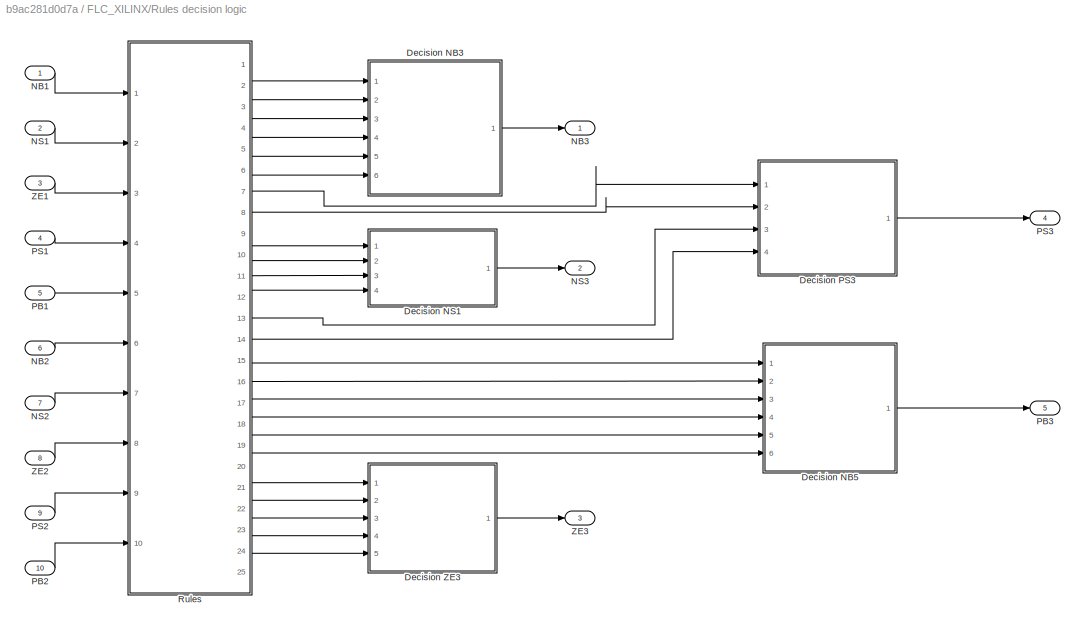
BLOCK [SubSystem] FLC_XILINX/Rules decision logic
  Ports = [10, 5]
  RequestExecContextInheritance = off
  Variant = off
BLOCK [SubSystem] FLC_XILINX/Rules decision logic/Decision NB3
  Ports = [6, 1]
  RequestExecContextInheritance = off
  Variant = off
BLOCK [Reference] FLC_XILINX/Rules decision logic/Decision NB3/Mux  REF=xbsIndex_r4/Mux
  Ports = [3, 1]
  SourceBlock = xbsIndex_r4/Mux
  SourceType = Xilinx Bus Multiplexer Block
BLOCK [Reference] FLC_XILINX/Rules decision logic/Decision NB3/Mux1  REF=xbsIndex_r4/Mux
  Ports = [3, 1]
  SourceBlock = xbsIndex_r4/Mux
  SourceType = Xilinx Bus Multiplexer Block
BLOCK [Reference] FLC_XILINX/Rules decision logic/Decision NB3/Mux2  REF=xbsIndex_r4/Mux
  Ports = [3, 1]
  SourceBlock = xbsIndex_r4/Mux
  SourceType = Xilinx Bus Multiplexer Block
BLOCK [Reference] FLC_XILINX/Rules decision logic/Decision NB3/Mux3  REF=xbsIndex_r4/Mux
  Ports = [3, 1]
  SourceBlock = xbsIndex_r4/Mux
  SourceType = Xilinx Bus Multiplexer Block
BLOCK [Reference] FLC_XILINX/Rules decision logic/Decision NB3/Mux4  REF=xbsIndex_r4/Mux
  Ports = [3, 1]
  SourceBlock = xbsIndex_r4/Mux
  SourceType = Xilinx Bus Multiplexer Block
BLOCK [Outport] FLC_XILINX/Rules decision logic/Decision NB3/NB3
  IconDisplay = Port number
BLOCK [Inport] FLC_XILINX/Rules decision logic/Decision NB3/R11_NB
  IconDisplay = Port number
  Port = 6
BLOCK [Inport] FLC_XILINX/Rules decision logic/Decision NB3/R1_NB
  IconDisplay = Port number
BLOCK [Inport] FLC_XILINX/Rules decision logic/Decision NB3/R2_NB
  IconDisplay = Port number
  Port = 2
BLOCK [Inport] FLC_XILINX/Rules decision logic/Decision NB3/R3_NB
  IconDisplay = Port number
  Port = 3
BLOCK [Inport] FLC_XILINX/Rules decision logic/Decision NB3/R6_NB
  IconDisplay = Port number
  Port = 4
BLOCK [Inport] FLC_XILINX/Rules decision logic/Decision NB3/R7_NB
  IconDisplay = Port number
  Port = 5
BLOCK [Reference] FLC_XILINX/Rules decision logic/Decision NB3/Relational  REF=xbsIndex_r4/Relational
  Ports = [2, 1]
  SourceBlock = xbsIndex_r4/Relational
  SourceType = Xilinx Arithmetic Relational Operator Block
BLOCK [Reference] FLC_XILINX/Rules decision logic/Decision NB3/Relational1  REF=xbsIndex_r4/Relational
  Ports = [2, 1]
  SourceBlock = xbsIndex_r4/Relational
  SourceType = Xilinx Arithmetic Relational Operator Block
BLOCK [Reference] FLC_XILINX/Rules decision logic/Decision NB3/Relational2  REF=xbsIndex_r4/Relational
  Ports = [2, 1]
  SourceBlock = xbsIndex_r4/Relational
  SourceType = Xilinx Arithmetic Relational Operator Block
BLOCK [Reference] FLC_XILINX/Rules decision logic/Decision NB3/Relational3  REF=xbsIndex_r4/Relational
  Ports = [2, 1]
  SourceBlock = xbsIndex_r4/Relational
  SourceType = Xilinx Arithmetic Relational Operator Block
BLOCK [Reference] FLC_XILINX/Rules decision logic/Decision NB3/Relational4  REF=xbsIndex_r4/Relational
  Ports = [2, 1]
  SourceBlock = xbsIndex_r4/Relational
  SourceType = Xilinx Arithmetic Relational Operator Block
BLOCK [SubSystem] FLC_XILINX/Rules decision logic/Decision NB5
  Ports = [6, 1]
  RequestExecContextInheritance = off
  Variant = off
BLOCK [Reference] FLC_XILINX/Rules decision logic/Decision NB5/Mux  REF=xbsIndex_r4/Mux
  Ports = [3, 1]
  SourceBlock = xbsIndex_r4/Mux
  SourceType = Xilinx Bus Multiplexer Block
BLOCK [Reference] FLC_XILINX/Rules decision logic/Decision NB5/Mux1  REF=xbsIndex_r4/Mux
  Ports = [3, 1]
  SourceBlock = xbsIndex_r4/Mux
  SourceType = Xilinx Bus Multiplexer Block
BLOCK [Reference] FLC_XILINX/Rules decision logic/Decision NB5/Mux2  REF=xbsIndex_r4/Mux
  Ports = [3, 1]
  SourceBlock = xbsIndex_r4/Mux
  SourceType = Xilinx Bus Multiplexer Block
BLOCK [Reference] FLC_XILINX/Rules decision logic/Decision NB5/Mux3  REF=xbsIndex_r4/Mux
  Ports = [3, 1]
  SourceBlock = xbsIndex_r4/Mux
  SourceType = Xilinx Bus Multiplexer Block
BLOCK [Reference] FLC_XILINX/Rules decision logic/Decision NB5/Mux4  REF=xbsIndex_r4/Mux
  Ports = [3, 1]
  SourceBlock = xbsIndex_r4/Mux
  SourceType = Xilinx Bus Multiplexer Block
BLOCK [Outport] FLC_XILINX/Rules decision logic/Decision NB5/PB3
  IconDisplay = Port number
BLOCK [Inport] FLC_XILINX/Rules decision logic/Decision NB5/R15_PB
  IconDisplay = Port number
BLOCK [Inport] FLC_XILINX/Rules decision logic/Decision NB5/R19_PB
  IconDisplay = Port number
  Port = 2
BLOCK [Inport] FLC_XILINX/Rules decision logic/Decision NB5/R20_PB
  IconDisplay = Port number
  Port = 3
BLOCK [Inport] FLC_XILINX/Rules decision logic/Decision NB5/R23_PB
  IconDisplay = Port number
  Port = 4
BLOCK [Inport] FLC_XILINX/Rules decision logic/Decision NB5/R24_PB
  IconDisplay = Port number
  Port = 5
BLOCK [Inport] FLC_XILINX/Rules decision logic/Decision NB5/R25_PB
  IconDisplay = Port number
  Port = 6
BLOCK [Reference] FLC_XILINX/Rules decision logic/Decision NB5/Relational  REF=xbsIndex_r4/Relational
  Ports = [2, 1]
  SourceBlock = xbsIndex_r4/Relational
  SourceType = Xilinx Arithmetic Relational Operator Block
BLOCK [Reference] FLC_XILINX/Rules decision logic/Decision NB5/Relational1  REF=xbsIndex_r4/Relational
  Ports = [2, 1]
  SourceBlock = xbsIndex_r4/Relational
  SourceType = Xilinx Arithmetic Relational Operator Block
BLOCK [Reference] FLC_XILINX/Rules decision logic/Decision NB5/Relational2  REF=xbsIndex_r4/Relational
  Ports = [2, 1]
  SourceBlock = xbsIndex_r4/Relational
  SourceType = Xilinx Arithmetic Relational Operator Block
BLOCK [Reference] FLC_XILINX/Rules decision logic/Decision NB5/Relational3  REF=xbsIndex_r4/Relational
  Ports = [2, 1]
  SourceBlock = xbsIndex_r4/Relational
  SourceType = Xilinx Arithmetic Relational Operator Block
BLOCK [Reference] FLC_XILINX/Rules decision logic/Decision NB5/Relational4  REF=xbsIndex_r4/Relational
  Ports = [2, 1]
  SourceBlock = xbsIndex_r4/Relational
  SourceType = Xilinx Arithmetic Relational Operator Block
BLOCK [SubSystem] FLC_XILINX/Rules decision logic/Decision NS1
  Ports = [4, 1]
  RequestExecContextInheritance = off
  Variant = off
BLOCK [Reference] FLC_XILINX/Rules decision logic/Decision NS1/Mux  REF=xbsIndex_r4/Mux
  Ports = [3, 1]
  SourceBlock = xbsIndex_r4/Mux
  SourceType = Xilinx Bus Multiplexer Block
BLOCK [Reference] FLC_XILINX/Rules decision logic/Decision NS1/Mux1  REF=xbsIndex_r4/Mux
  Ports = [3, 1]
  SourceBlock = xbsIndex_r4/Mux
  SourceType = Xilinx Bus Multiplexer Block
BLOCK [Reference] FLC_XILINX/Rules decision logic/Decision NS1/Mux3  REF=xbsIndex_r4/Mux
  Ports = [3, 1]
  SourceBlock = xbsIndex_r4/Mux
  SourceType = Xilinx Bus Multiplexer Block
BLOCK [Outport] FLC_XILINX/Rules decision logic/Decision NS1/NS3
  IconDisplay = Port number
BLOCK [Inport] FLC_XILINX/Rules decision logic/Decision NS1/R12_NS
  IconDisplay = Port number
  Port = 3
BLOCK [Inport] FLC_XILINX/Rules decision logic/Decision NS1/R16_NS
  IconDisplay = Port number
  Port = 4
BLOCK [Inport] FLC_XILINX/Rules decision logic/Decision NS1/R4_NS
  IconDisplay = Port number
BLOCK [Inport] FLC_XILINX/Rules decision logic/Decision NS1/R8_NS
  IconDisplay = Port number
  Port = 2
BLOCK [Reference] FLC_XILINX/Rules decision logic/Decision NS1/Relational  REF=xbsIndex_r4/Relational
  Ports = [2, 1]
  SourceBlock = xbsIndex_r4/Relational
  SourceType = Xilinx Arithmetic Relational Operator Block
BLOCK [Reference] FLC_XILINX/Rules decision logic/Decision NS1/Relational1  REF=xbsIndex_r4/Relational
  Ports = [2, 1]
  SourceBlock = xbsIndex_r4/Relational
  SourceType = Xilinx Arithmetic Relational Operator Block
BLOCK [Reference] FLC_XILINX/Rules decision logic/Decision NS1/Relational3  REF=xbsIndex_r4/Relational
  Ports = [2, 1]
  SourceBlock = xbsIndex_r4/Relational
  SourceType = Xilinx Arithmetic Relational Operator Block
BLOCK [SubSystem] FLC_XILINX/Rules decision logic/Decision PS3
  Ports = [4, 1]
  RequestExecContextInheritance = off
  Variant = off
BLOCK [Reference] FLC_XILINX/Rules decision logic/Decision PS3/Mux  REF=xbsIndex_r4/Mux
  Ports = [3, 1]
  SourceBlock = xbsIndex_r4/Mux
  SourceType = Xilinx Bus Multiplexer Block
BLOCK [Reference] FLC_XILINX/Rules decision logic/Decision PS3/Mux1  REF=xbsIndex_r4/Mux
  Ports = [3, 1]
  SourceBlock = xbsIndex_r4/Mux
  SourceType = Xilinx Bus Multiplexer Block
BLOCK [Reference] FLC_XILINX/Rules decision logic/Decision PS3/Mux3  REF=xbsIndex_r4/Mux
  Ports = [3, 1]
  SourceBlock = xbsIndex_r4/Mux
  SourceType = Xilinx Bus Multiplexer Block
BLOCK [Outport] FLC_XILINX/Rules decision logic/Decision PS3/PS3
  IconDisplay = Port number
BLOCK [Inport] FLC_XILINX/Rules decision logic/Decision PS3/R10_PS
  IconDisplay = Port number
BLOCK [Inport] FLC_XILINX/Rules decision logic/Decision PS3/R14_PS
  IconDisplay = Port number
  Port = 2
BLOCK [Inport] FLC_XILINX/Rules decision logic/Decision PS3/R18_PS
  IconDisplay = Port number
  Port = 3
BLOCK [Inport] FLC_XILINX/Rules decision logic/Decision PS3/R22_PS
  IconDisplay = Port number
  Port = 4
BLOCK [Reference] FLC_XILINX/Rules decision logic/Decision PS3/Relational  REF=xbsIndex_r4/Relational
  Ports = [2, 1]
  SourceBlock = xbsIndex_r4/Relational
  SourceType = Xilinx Arithmetic Relational Operator Block
BLOCK [Reference] FLC_XILINX/Rules decision logic/Decision PS3/Relational1  REF=xbsIndex_r4/Relational
  Ports = [2, 1]
  SourceBlock = xbsIndex_r4/Relational
  SourceType = Xilinx Arithmetic Relational Operator Block
BLOCK [Reference] FLC_XILINX/Rules decision logic/Decision PS3/Relational3  REF=xbsIndex_r4/Relational
  Ports = [2, 1]
  SourceBlock = xbsIndex_r4/Relational
  SourceType = Xilinx Arithmetic Relational Operator Block
BLOCK [SubSystem] FLC_XILINX/Rules decision logic/Decision ZE3
  Ports = [5, 1]
  RequestExecContextInheritance = off
  Variant = off
BLOCK [Reference] FLC_XILINX/Rules decision logic/Decision ZE3/Mux  REF=xbsIndex_r4/Mux
  Ports = [3, 1]
  SourceBlock = xbsIndex_r4/Mux
  SourceType = Xilinx Bus Multiplexer Block
BLOCK [Reference] FLC_XILINX/Rules decision logic/Decision ZE3/Mux1  REF=xbsIndex_r4/Mux
  Ports = [3, 1]
  SourceBlock = xbsIndex_r4/Mux
  SourceType = Xilinx Bus Multiplexer Block
BLOCK [Reference] FLC_XILINX/Rules decision logic/Decision ZE3/Mux3  REF=xbsIndex_r4/Mux
  Ports = [3, 1]
  SourceBlock = xbsIndex_r4/Mux
  SourceType = Xilinx Bus Multiplexer Block
BLOCK [Reference] FLC_XILINX/Rules decision logic/Decision ZE3/Mux4  REF=xbsIndex_r4/Mux
  Ports = [3, 1]
  SourceBlock = xbsIndex_r4/Mux
  SourceType = Xilinx Bus Multiplexer Block
BLOCK [Inport] FLC_XILINX/Rules decision logic/Decision ZE3/R13_ZE
  IconDisplay = Port number
  Port = 3
BLOCK [Inport] FLC_XILINX/Rules decision logic/Decision ZE3/R17_ZE
  IconDisplay = Port number
  Port = 4
BLOCK [Inport] FLC_XILINX/Rules decision logic/Decision ZE3/R21_ZE
  IconDisplay = Port number
  Port = 5
BLOCK [Inport] FLC_XILINX/Rules decision logic/Decision ZE3/R5_ZE
  IconDisplay = Port number
BLOCK [Inport] FLC_XILINX/Rules decision logic/Decision ZE3/R9_ZE
  IconDisplay = Port number
  Port = 2
BLOCK [Reference] FLC_XILINX/Rules decision logic/Decision ZE3/Relational  REF=xbsIndex_r4/Relational
  Ports = [2, 1]
  SourceBlock = xbsIndex_r4/Relational
  SourceType = Xilinx Arithmetic Relational Operator Block
BLOCK [Reference] FLC_XILINX/Rules decision logic/Decision ZE3/Relational1  REF=xbsIndex_r4/Relational
  Ports = [2, 1]
  SourceBlock = xbsIndex_r4/Relational
  SourceType = Xilinx Arithmetic Relational Operator Block
BLOCK [Reference] FLC_XILINX/Rules decision logic/Decision ZE3/Relational3  REF=xbsIndex_r4/Relational
  Ports = [2, 1]
  SourceBlock = xbsIndex_r4/Relational
  SourceType = Xilinx Arithmetic Relational Operator Block
BLOCK [Reference] FLC_XILINX/Rules decision logic/Decision ZE3/Relational4  REF=xbsIndex_r4/Relational
  Ports = [2, 1]
  SourceBlock = xbsIndex_r4/Relational
  SourceType = Xilinx Arithmetic Relational Operator Block
BLOCK [Outport] FLC_XILINX/Rules decision logic/Decision ZE3/ZE3
  IconDisplay = Port number
BLOCK [Inport] FLC_XILINX/Rules decision logic/NB1
  IconDisplay = Port number
BLOCK [Inport] FLC_XILINX/Rules decision logic/NB2
  IconDisplay = Port number
  Port = 6
BLOCK [Outport] FLC_XILINX/Rules decision logic/NB3
  IconDisplay = Port number
BLOCK [Inport] FLC_XILINX/Rules decision logic/NS1
  IconDisplay = Port number
  Port = 2
BLOCK [Inport] FLC_XILINX/Rules decision logic/NS2
  IconDisplay = Port number
  Port = 7
BLOCK [Outport] FLC_XILINX/Rules decision logic/NS3
  IconDisplay = Port number
  Port = 2
BLOCK [Inport] FLC_XILINX/Rules decision logic/PB1
  IconDisplay = Port number
  Port = 5
BLOCK [Inport] FLC_XILINX/Rules decision logic/PB2
  IconDisplay = Port number
  Port = 10
BLOCK [Outport] FLC_XILINX/Rules decision logic/PB3
  IconDisplay = Port number
  Port = 5
BLOCK [Inport] FLC_XILINX/Rules decision logic/PS1
  IconDisplay = Port number
  Port = 4
BLOCK [Inport] FLC_XILINX/Rules decision logic/PS2
  IconDisplay = Port number
  Port = 9
BLOCK [Outport] FLC_XILINX/Rules decision logic/PS3
  IconDisplay = Port number
  Port = 4
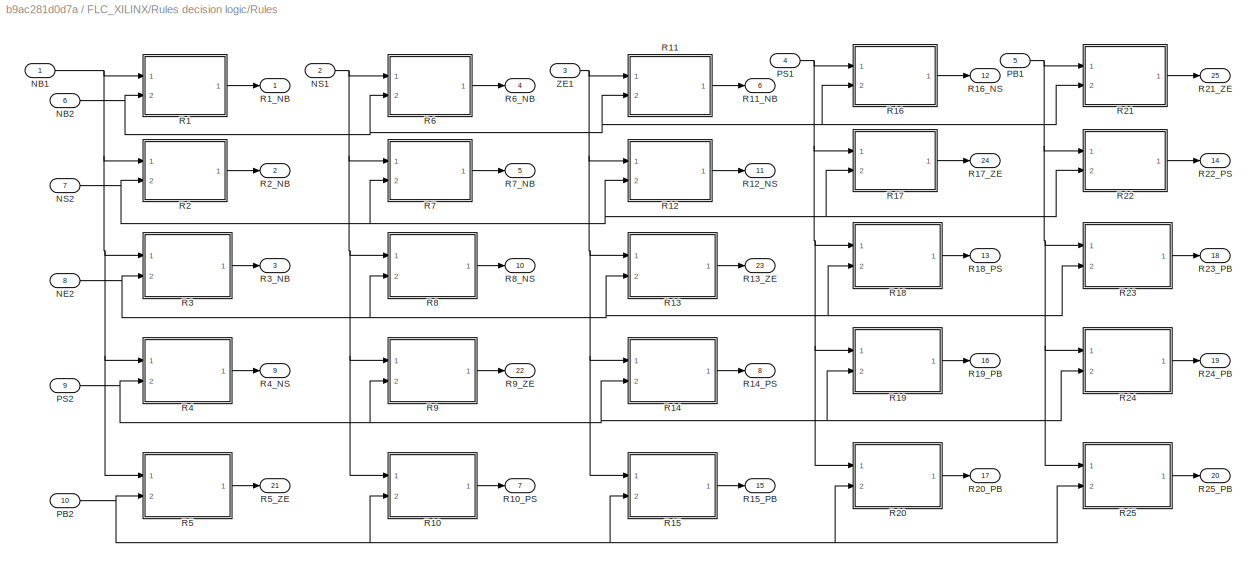
BLOCK [SubSystem] FLC_XILINX/Rules decision logic/Rules
  Ports = [10, 25]
  RequestExecContextInheritance = off
  Variant = off
BLOCK [Inport] FLC_XILINX/Rules decision logic/Rules/NB1
  IconDisplay = Port number
BLOCK [Inport] FLC_XILINX/Rules decision logic/Rules/NB2
  IconDisplay = Port number
  Port = 6
BLOCK [Inport] FLC_XILINX/Rules decision logic/Rules/NE2
  IconDisplay = Port number
  Port = 8
BLOCK [Inport] FLC_XILINX/Rules decision logic/Rules/NS1
  IconDisplay = Port number
  Port = 2
BLOCK [Inport] FLC_XILINX/Rules decision logic/Rules/NS2
  IconDisplay = Port number
  Port = 7
BLOCK [Inport] FLC_XILINX/Rules decision logic/Rules/PB1
  IconDisplay = Port number
  Port = 5
BLOCK [Inport] FLC_XILINX/Rules decision logic/Rules/PB2
  IconDisplay = Port number
  Port = 10
BLOCK [Inport] FLC_XILINX/Rules decision logic/Rules/PS1
  IconDisplay = Port number
  Port = 4
BLOCK [Inport] FLC_XILINX/Rules decision logic/Rules/PS2
  IconDisplay = Port number
  Port = 9
BLOCK [SubSystem] FLC_XILINX/Rules decision logic/Rules/R1
  Ports = [2, 1]
  RequestExecContextInheritance = off
  Variant = off
BLOCK [Reference] FLC_XILINX/Rules decision logic/Rules/R1/Mux  REF=xbsIndex_r4/Mux
  Ports = [3, 1]
  SourceBlock = xbsIndex_r4/Mux
  SourceType = Xilinx Bus Multiplexer Block
BLOCK [Inport] FLC_XILINX/Rules decision logic/Rules/R1/NB1
  IconDisplay = Port number
BLOCK [Inport] FLC_XILINX/Rules decision logic/Rules/R1/NB2
  IconDisplay = Port number
  Port = 2
BLOCK [Outport] FLC_XILINX/Rules decision logic/Rules/R1/R1_NB
  IconDisplay = Port number
BLOCK [Reference] FLC_XILINX/Rules decision logic/Rules/R1/Relational  REF=xbsIndex_r4/Relational
  Ports = [2, 1]
  SourceBlock = xbsIndex_r4/Relational
  SourceType = Xilinx Arithmetic Relational Operator Block
BLOCK [SubSystem] FLC_XILINX/Rules decision logic/Rules/R10
  Ports = [2, 1]
  RequestExecContextInheritance = off
  Variant = off
BLOCK [Reference] FLC_XILINX/Rules decision logic/Rules/R10/Mux  REF=xbsIndex_r4/Mux
  Ports = [3, 1]
  SourceBlock = xbsIndex_r4/Mux
  SourceType = Xilinx Bus Multiplexer Block
BLOCK [Inport] FLC_XILINX/Rules decision logic/Rules/R10/NS1
  IconDisplay = Port number
BLOCK [Inport] FLC_XILINX/Rules decision logic/Rules/R10/PB2
  IconDisplay = Port number
  Port = 2
BLOCK [Outport] FLC_XILINX/Rules decision logic/Rules/R10/R10_PS
  IconDisplay = Port number
BLOCK [Reference] FLC_XILINX/Rules decision logic/Rules/R10/Relational  REF=xbsIndex_r4/Relational
  Ports = [2, 1]
  SourceBlock = xbsIndex_r4/Relational
  SourceType = Xilinx Arithmetic Relational Operator Block
BLOCK [Outport] FLC_XILINX/Rules decision logic/Rules/R10_PS
  IconDisplay = Port number
  Port = 7
BLOCK [SubSystem] FLC_XILINX/Rules decision logic/Rules/R11
  Ports = [2, 1]
  RequestExecContextInheritance = off
  Variant = off
BLOCK [Reference] FLC_XILINX/Rules decision logic/Rules/R11/Mux  REF=xbsIndex_r4/Mux
  Ports = [3, 1]
  SourceBlock = xbsIndex_r4/Mux
  SourceType = Xilinx Bus Multiplexer Block
BLOCK [Inport] FLC_XILINX/Rules decision logic/Rules/R11/NB2
  IconDisplay = Port number
  Port = 2
BLOCK [Outport] FLC_XILINX/Rules decision logic/Rules/R11/R11_NB
  IconDisplay = Port number
BLOCK [Reference] FLC_XILINX/Rules decision logic/Rules/R11/Relational  REF=xbsIndex_r4/Relational
  Ports = [2, 1]
  SourceBlock = xbsIndex_r4/Relational
  SourceType = Xilinx Arithmetic Relational Operator Block
BLOCK [Inport] FLC_XILINX/Rules decision logic/Rules/R11/ZE1
  IconDisplay = Port number
BLOCK [Outport] FLC_XILINX/Rules decision logic/Rules/R11_NB
  IconDisplay = Port number
  Port = 6
BLOCK [SubSystem] FLC_XILINX/Rules decision logic/Rules/R12
  Ports = [2, 1]
  RequestExecContextInheritance = off
  Variant = off
BLOCK [Reference] FLC_XILINX/Rules decision logic/Rules/R12/Mux  REF=xbsIndex_r4/Mux
  Ports = [3, 1]
  SourceBlock = xbsIndex_r4/Mux
  SourceType = Xilinx Bus Multiplexer Block
BLOCK [Inport] FLC_XILINX/Rules decision logic/Rules/R12/NS2
  IconDisplay = Port number
  Port = 2
BLOCK [Outport] FLC_XILINX/Rules decision logic/Rules/R12/R12_NS
  IconDisplay = Port number
BLOCK [Reference] FLC_XILINX/Rules decision logic/Rules/R12/Relational  REF=xbsIndex_r4/Relational
  Ports = [2, 1]
  SourceBlock = xbsIndex_r4/Relational
  SourceType = Xilinx Arithmetic Relational Operator Block
BLOCK [Inport] FLC_XILINX/Rules decision logic/Rules/R12/ZE1
  IconDisplay = Port number
BLOCK [Outport] FLC_XILINX/Rules decision logic/Rules/R12_NS
  IconDisplay = Port number
  Port = 11
BLOCK [SubSystem] FLC_XILINX/Rules decision logic/Rules/R13
  Ports = [2, 1]
  RequestExecContextInheritance = off
  Variant = off
BLOCK [Reference] FLC_XILINX/Rules decision logic/Rules/R13/Mux  REF=xbsIndex_r4/Mux
  Ports = [3, 1]
  SourceBlock = xbsIndex_r4/Mux
  SourceType = Xilinx Bus Multiplexer Block
BLOCK [Outport] FLC_XILINX/Rules decision logic/Rules/R13/R13_ZE
  IconDisplay = Port number
BLOCK [Reference] FLC_XILINX/Rules decision logic/Rules/R13/Relational  REF=xbsIndex_r4/Relational
  Ports = [2, 1]
  SourceBlock = xbsIndex_r4/Relational
  SourceType = Xilinx Arithmetic Relational Operator Block
BLOCK [Inport] FLC_XILINX/Rules decision logic/Rules/R13/ZE1
  IconDisplay = Port number
BLOCK [Inport] FLC_XILINX/Rules decision logic/Rules/R13/ZE2
  IconDisplay = Port number
  Port = 2
BLOCK [Outport] FLC_XILINX/Rules decision logic/Rules/R13_ZE
  IconDisplay = Port number
  Port = 23
BLOCK [SubSystem] FLC_XILINX/Rules decision logic/Rules/R14
  Ports = [2, 1]
  RequestExecContextInheritance = off
  Variant = off
BLOCK [Reference] FLC_XILINX/Rules decision logic/Rules/R14/Mux  REF=xbsIndex_r4/Mux
  Ports = [3, 1]
  SourceBlock = xbsIndex_r4/Mux
  SourceType = Xilinx Bus Multiplexer Block
BLOCK [Inport] FLC_XILINX/Rules decision logic/Rules/R14/PS2
  IconDisplay = Port number
  Port = 2
BLOCK [Outport] FLC_XILINX/Rules decision logic/Rules/R14/R14_PS
  IconDisplay = Port number
BLOCK [Reference] FLC_XILINX/Rules decision logic/Rules/R14/Relational  REF=xbsIndex_r4/Relational
  Ports = [2, 1]
  SourceBlock = xbsIndex_r4/Relational
  SourceType = Xilinx Arithmetic Relational Operator Block
BLOCK [Inport] FLC_XILINX/Rules decision logic/Rules/R14/ZE1
  IconDisplay = Port number
BLOCK [Outport] FLC_XILINX/Rules decision logic/Rules/R14_PS
  IconDisplay = Port number
  Port = 8
BLOCK [SubSystem] FLC_XILINX/Rules decision logic/Rules/R15
  Ports = [2, 1]
  RequestExecContextInheritance = off
  Variant = off
BLOCK [Reference] FLC_XILINX/Rules decision logic/Rules/R15/Mux  REF=xbsIndex_r4/Mux
  Ports = [3, 1]
  SourceBlock = xbsIndex_r4/Mux
  SourceType = Xilinx Bus Multiplexer Block
BLOCK [Inport] FLC_XILINX/Rules decision logic/Rules/R15/PB2
  IconDisplay = Port number
  Port = 2
BLOCK [Outport] FLC_XILINX/Rules decision logic/Rules/R15/R15_PB
  IconDisplay = Port number
BLOCK [Reference] FLC_XILINX/Rules decision logic/Rules/R15/Relational  REF=xbsIndex_r4/Relational
  Ports = [2, 1]
  SourceBlock = xbsIndex_r4/Relational
  SourceType = Xilinx Arithmetic Relational Operator Block
BLOCK [Inport] FLC_XILINX/Rules decision logic/Rules/R15/ZE1
  IconDisplay = Port number
BLOCK [Outport] FLC_XILINX/Rules decision logic/Rules/R15_PB
  IconDisplay = Port number
  Port = 15
BLOCK [SubSystem] FLC_XILINX/Rules decision logic/Rules/R16
  Ports = [2, 1]
  RequestExecContextInheritance = off
  Variant = off
BLOCK [Reference] FLC_XILINX/Rules decision logic/Rules/R16/Mux  REF=xbsIndex_r4/Mux
  Ports = [3, 1]
  SourceBlock = xbsIndex_r4/Mux
  SourceType = Xilinx Bus Multiplexer Block
BLOCK [Inport] FLC_XILINX/Rules decision logic/Rules/R16/NB2
  IconDisplay = Port number
  Port = 2
BLOCK [Inport] FLC_XILINX/Rules decision logic/Rules/R16/PS1
  IconDisplay = Port number
BLOCK [Outport] FLC_XILINX/Rules decision logic/Rules/R16/R16_NS
  IconDisplay = Port number
BLOCK [Reference] FLC_XILINX/Rules decision logic/Rules/R16/Relational  REF=xbsIndex_r4/Relational
  Ports = [2, 1]
  SourceBlock = xbsIndex_r4/Relational
  SourceType = Xilinx Arithmetic Relational Operator Block
BLOCK [Outport] FLC_XILINX/Rules decision logic/Rules/R16_NS
  IconDisplay = Port number
  Port = 12
BLOCK [SubSystem] FLC_XILINX/Rules decision logic/Rules/R17
  Ports = [2, 1]
  RequestExecContextInheritance = off
  Variant = off
BLOCK [Reference] FLC_XILINX/Rules decision logic/Rules/R17/Mux  REF=xbsIndex_r4/Mux
  Ports = [3, 1]
  SourceBlock = xbsIndex_r4/Mux
  SourceType = Xilinx Bus Multiplexer Block
BLOCK [Inport] FLC_XILINX/Rules decision logic/Rules/R17/NS2
  IconDisplay = Port number
  Port = 2
BLOCK [Inport] FLC_XILINX/Rules decision logic/Rules/R17/PS1
  IconDisplay = Port number
BLOCK [Outport] FLC_XILINX/Rules decision logic/Rules/R17/R17_ZE
  IconDisplay = Port number
BLOCK [Reference] FLC_XILINX/Rules decision logic/Rules/R17/Relational  REF=xbsIndex_r4/Relational
  Ports = [2, 1]
  SourceBlock = xbsIndex_r4/Relational
  SourceType = Xilinx Arithmetic Relational Operator Block
BLOCK [Outport] FLC_XILINX/Rules decision logic/Rules/R17_ZE
  IconDisplay = Port number
  Port = 24
BLOCK [SubSystem] FLC_XILINX/Rules decision logic/Rules/R18
  Ports = [2, 1]
  RequestExecContextInheritance = off
  Variant = off
BLOCK [Reference] FLC_XILINX/Rules decision logic/Rules/R18/Mux  REF=xbsIndex_r4/Mux
  Ports = [3, 1]
  SourceBlock = xbsIndex_r4/Mux
  SourceType = Xilinx Bus Multiplexer Block
BLOCK [Inport] FLC_XILINX/Rules decision logic/Rules/R18/NE2
  IconDisplay = Port number
  Port = 2
BLOCK [Inport] FLC_XILINX/Rules decision logic/Rules/R18/PS1
  IconDisplay = Port number
BLOCK [Outport] FLC_XILINX/Rules decision logic/Rules/R18/R18_PS
  IconDisplay = Port number
BLOCK [Reference] FLC_XILINX/Rules decision logic/Rules/R18/Relational  REF=xbsIndex_r4/Relational
  Ports = [2, 1]
  SourceBlock = xbsIndex_r4/Relational
  SourceType = Xilinx Arithmetic Relational Operator Block
BLOCK [Outport] FLC_XILINX/Rules decision logic/Rules/R18_PS
  IconDisplay = Port number
  Port = 13
BLOCK [SubSystem] FLC_XILINX/Rules decision logic/Rules/R19
  Ports = [2, 1]
  RequestExecContextInheritance = off
  Variant = off
BLOCK [Reference] FLC_XILINX/Rules decision logic/Rules/R19/Mux  REF=xbsIndex_r4/Mux
  Ports = [3, 1]
  SourceBlock = xbsIndex_r4/Mux
  SourceType = Xilinx Bus Multiplexer Block
BLOCK [Inport] FLC_XILINX/Rules decision logic/Rules/R19/PS1
  IconDisplay = Port number
BLOCK [Inport] FLC_XILINX/Rules decision logic/Rules/R19/PS2
  IconDisplay = Port number
  Port = 2
BLOCK [Outport] FLC_XILINX/Rules decision logic/Rules/R19/R19_PB
  IconDisplay = Port number
BLOCK [Reference] FLC_XILINX/Rules decision logic/Rules/R19/Relational  REF=xbsIndex_r4/Relational
  Ports = [2, 1]
  SourceBlock = xbsIndex_r4/Relational
  SourceType = Xilinx Arithmetic Relational Operator Block
BLOCK [Outport] FLC_XILINX/Rules decision logic/Rules/R19_PB
  IconDisplay = Port number
  Port = 16
BLOCK [Outport] FLC_XILINX/Rules decision logic/Rules/R1_NB
  IconDisplay = Port number
BLOCK [SubSystem] FLC_XILINX/Rules decision logic/Rules/R2
  Ports = [2, 1]
  RequestExecContextInheritance = off
  Variant = off
BLOCK [Reference] FLC_XILINX/Rules decision logic/Rules/R2/Mux  REF=xbsIndex_r4/Mux
  Ports = [3, 1]
  SourceBlock = xbsIndex_r4/Mux
  SourceType = Xilinx Bus Multiplexer Block
BLOCK [Inport] FLC_XILINX/Rules decision logic/Rules/R2/NB1
  IconDisplay = Port number
BLOCK [Inport] FLC_XILINX/Rules decision logic/Rules/R2/NS2
  IconDisplay = Port number
  Port = 2
BLOCK [Outport] FLC_XILINX/Rules decision logic/Rules/R2/R2_NB
  IconDisplay = Port number
BLOCK [Reference] FLC_XILINX/Rules decision logic/Rules/R2/Relational  REF=xbsIndex_r4/Relational
  Ports = [2, 1]
  SourceBlock = xbsIndex_r4/Relational
  SourceType = Xilinx Arithmetic Relational Operator Block
BLOCK [SubSystem] FLC_XILINX/Rules decision logic/Rules/R20
  Ports = [2, 1]
  RequestExecContextInheritance = off
  Variant = off
BLOCK [Reference] FLC_XILINX/Rules decision logic/Rules/R20/Mux  REF=xbsIndex_r4/Mux
  Ports = [3, 1]
  SourceBlock = xbsIndex_r4/Mux
  SourceType = Xilinx Bus Multiplexer Block
BLOCK [Inport] FLC_XILINX/Rules decision logic/Rules/R20/PB2
  IconDisplay = Port number
  Port = 2
BLOCK [Inport] FLC_XILINX/Rules decision logic/Rules/R20/PS1
  IconDisplay = Port number
BLOCK [Outport] FLC_XILINX/Rules decision logic/Rules/R20/R20_PB
  IconDisplay = Port number
BLOCK [Reference] FLC_XILINX/Rules decision logic/Rules/R20/Relational  REF=xbsIndex_r4/Relational
  Ports = [2, 1]
  SourceBlock = xbsIndex_r4/Relational
  SourceType = Xilinx Arithmetic Relational Operator Block
BLOCK [Outport] FLC_XILINX/Rules decision logic/Rules/R20_PB
  IconDisplay = Port number
  Port = 17
BLOCK [SubSystem] FLC_XILINX/Rules decision logic/Rules/R21
  Ports = [2, 1]
  RequestExecContextInheritance = off
  Variant = off
BLOCK [Reference] FLC_XILINX/Rules decision logic/Rules/R21/Mux  REF=xbsIndex_r4/Mux
  Ports = [3, 1]
  SourceBlock = xbsIndex_r4/Mux
  SourceType = Xilinx Bus Multiplexer Block
BLOCK [Inport] FLC_XILINX/Rules decision logic/Rules/R21/NB2
  IconDisplay = Port number
  Port = 2
BLOCK [Inport] FLC_XILINX/Rules decision logic/Rules/R21/PB1
  IconDisplay = Port number
BLOCK [Outport] FLC_XILINX/Rules decision logic/Rules/R21/R21_ZE
  IconDisplay = Port number
BLOCK [Reference] FLC_XILINX/Rules decision logic/Rules/R21/Relational  REF=xbsIndex_r4/Relational
  Ports = [2, 1]
  SourceBlock = xbsIndex_r4/Relational
  SourceType = Xilinx Arithmetic Relational Operator Block
BLOCK [Outport] FLC_XILINX/Rules decision logic/Rules/R21_ZE
  IconDisplay = Port number
  Port = 25
BLOCK [SubSystem] FLC_XILINX/Rules decision logic/Rules/R22
  Ports = [2, 1]
  RequestExecContextInheritance = off
  Variant = off
BLOCK [Reference] FLC_XILINX/Rules decision logic/Rules/R22/Mux  REF=xbsIndex_r4/Mux
  Ports = [3, 1]
  SourceBlock = xbsIndex_r4/Mux
  SourceType = Xilinx Bus Multiplexer Block
BLOCK [Inport] FLC_XILINX/Rules decision logic/Rules/R22/NS2
  IconDisplay = Port number
  Port = 2
BLOCK [Inport] FLC_XILINX/Rules decision logic/Rules/R22/PB1
  IconDisplay = Port number
BLOCK [Outport] FLC_XILINX/Rules decision logic/Rules/R22/R22_PS
  IconDisplay = Port number
BLOCK [Reference] FLC_XILINX/Rules decision logic/Rules/R22/Relational  REF=xbsIndex_r4/Relational
  Ports = [2, 1]
  SourceBlock = xbsIndex_r4/Relational
  SourceType = Xilinx Arithmetic Relational Operator Block
BLOCK [Outport] FLC_XILINX/Rules decision logic/Rules/R22_PS
  IconDisplay = Port number
  Port = 14
BLOCK [SubSystem] FLC_XILINX/Rules decision logic/Rules/R23
  Ports = [2, 1]
  RequestExecContextInheritance = off
  Variant = off
BLOCK [Reference] FLC_XILINX/Rules decision logic/Rules/R23/Mux  REF=xbsIndex_r4/Mux
  Ports = [3, 1]
  SourceBlock = xbsIndex_r4/Mux
  SourceType = Xilinx Bus Multiplexer Block
BLOCK [Inport] FLC_XILINX/Rules decision logic/Rules/R23/NE2
  IconDisplay = Port number
  Port = 2
BLOCK [Inport] FLC_XILINX/Rules decision logic/Rules/R23/PB1
  IconDisplay = Port number
BLOCK [Outport] FLC_XILINX/Rules decision logic/Rules/R23/R23_PB
  IconDisplay = Port number
BLOCK [Reference] FLC_XILINX/Rules decision logic/Rules/R23/Relational  REF=xbsIndex_r4/Relational
  Ports = [2, 1]
  SourceBlock = xbsIndex_r4/Relational
  SourceType = Xilinx Arithmetic Relational Operator Block
BLOCK [Outport] FLC_XILINX/Rules decision logic/Rules/R23_PB
  IconDisplay = Port number
  Port = 18
BLOCK [SubSystem] FLC_XILINX/Rules decision logic/Rules/R24
  Ports = [2, 1]
  RequestExecContextInheritance = off
  Variant = off
BLOCK [Reference] FLC_XILINX/Rules decision logic/Rules/R24/Mux  REF=xbsIndex_r4/Mux
  Ports = [3, 1]
  SourceBlock = xbsIndex_r4/Mux
  SourceType = Xilinx Bus Multiplexer Block
BLOCK [Inport] FLC_XILINX/Rules decision logic/Rules/R24/PB1
  IconDisplay = Port number
BLOCK [Inport] FLC_XILINX/Rules decision logic/Rules/R24/PS2
  IconDisplay = Port number
  Port = 2
BLOCK [Outport] FLC_XILINX/Rules decision logic/Rules/R24/R24_PB
  IconDisplay = Port number
BLOCK [Reference] FLC_XILINX/Rules decision logic/Rules/R24/Relational  REF=xbsIndex_r4/Relational
  Ports = [2, 1]
  SourceBlock = xbsIndex_r4/Relational
  SourceType = Xilinx Arithmetic Relational Operator Block
BLOCK [Outport] FLC_XILINX/Rules decision logic/Rules/R24_PB
  IconDisplay = Port number
  Port = 19
BLOCK [SubSystem] FLC_XILINX/Rules decision logic/Rules/R25
  Ports = [2, 1]
  RequestExecContextInheritance = off
  Variant = off
BLOCK [Reference] FLC_XILINX/Rules decision logic/Rules/R25/Mux  REF=xbsIndex_r4/Mux
  Ports = [3, 1]
  SourceBlock = xbsIndex_r4/Mux
  SourceType = Xilinx Bus Multiplexer Block
BLOCK [Inport] FLC_XILINX/Rules decision logic/Rules/R25/PB1
  IconDisplay = Port number
BLOCK [Inport] FLC_XILINX/Rules decision logic/Rules/R25/PB2
  IconDisplay = Port number
  Port = 2
BLOCK [Outport] FLC_XILINX/Rules decision logic/Rules/R25/R25_NB
  IconDisplay = Port number
BLOCK [Reference] FLC_XILINX/Rules decision logic/Rules/R25/Relational  REF=xbsIndex_r4/Relational
  Ports = [2, 1]
  SourceBlock = xbsIndex_r4/Relational
  SourceType = Xilinx Arithmetic Relational Operator Block
BLOCK [Outport] FLC_XILINX/Rules decision logic/Rules/R25_PB
  IconDisplay = Port number
  Port = 20
BLOCK [Outport] FLC_XILINX/Rules decision logic/Rules/R2_NB
  IconDisplay = Port number
  Port = 2
BLOCK [SubSystem] FLC_XILINX/Rules decision logic/Rules/R3
  Ports = [2, 1]
  RequestExecContextInheritance = off
  Variant = off
BLOCK [Reference] FLC_XILINX/Rules decision logic/Rules/R3/Mux  REF=xbsIndex_r4/Mux
  Ports = [3, 1]
  SourceBlock = xbsIndex_r4/Mux
  SourceType = Xilinx Bus Multiplexer Block
BLOCK [Inport] FLC_XILINX/Rules decision logic/Rules/R3/NB1
  IconDisplay = Port number
BLOCK [Inport] FLC_XILINX/Rules decision logic/Rules/R3/NE2
  IconDisplay = Port number
  Port = 2
BLOCK [Outport] FLC_XILINX/Rules decision logic/Rules/R3/R3_NB
  IconDisplay = Port number
BLOCK [Reference] FLC_XILINX/Rules decision logic/Rules/R3/Relational  REF=xbsIndex_r4/Relational
  Ports = [2, 1]
  SourceBlock = xbsIndex_r4/Relational
  SourceType = Xilinx Arithmetic Relational Operator Block
BLOCK [Outport] FLC_XILINX/Rules decision logic/Rules/R3_NB
  IconDisplay = Port number
  Port = 3
BLOCK [SubSystem] FLC_XILINX/Rules decision logic/Rules/R4
  Ports = [2, 1]
  RequestExecContextInheritance = off
  Variant = off
BLOCK [Reference] FLC_XILINX/Rules decision logic/Rules/R4/Mux  REF=xbsIndex_r4/Mux
  Ports = [3, 1]
  SourceBlock = xbsIndex_r4/Mux
  SourceType = Xilinx Bus Multiplexer Block
BLOCK [Inport] FLC_XILINX/Rules decision logic/Rules/R4/NB1
  IconDisplay = Port number
BLOCK [Inport] FLC_XILINX/Rules decision logic/Rules/R4/PS2
  IconDisplay = Port number
  Port = 2
BLOCK [Outport] FLC_XILINX/Rules decision logic/Rules/R4/R4_NS
  IconDisplay = Port number
BLOCK [Reference] FLC_XILINX/Rules decision logic/Rules/R4/Relational  REF=xbsIndex_r4/Relational
  Ports = [2, 1]
  SourceBlock = xbsIndex_r4/Relational
  SourceType = Xilinx Arithmetic Relational Operator Block
BLOCK [Outport] FLC_XILINX/Rules decision logic/Rules/R4_NS
  IconDisplay = Port number
  Port = 9
BLOCK [SubSystem] FLC_XILINX/Rules decision logic/Rules/R5
  Ports = [2, 1]
  RequestExecContextInheritance = off
  Variant = off
BLOCK [Reference] FLC_XILINX/Rules decision logic/Rules/R5/Mux  REF=xbsIndex_r4/Mux
  Ports = [3, 1]
  SourceBlock = xbsIndex_r4/Mux
  SourceType = Xilinx Bus Multiplexer Block
BLOCK [Inport] FLC_XILINX/Rules decision logic/Rules/R5/NB1
  IconDisplay = Port number
BLOCK [Inport] FLC_XILINX/Rules decision logic/Rules/R5/PB2
  IconDisplay = Port number
  Port = 2
BLOCK [Outport] FLC_XILINX/Rules decision logic/Rules/R5/R5_ZE
  IconDisplay = Port number
BLOCK [Reference] FLC_XILINX/Rules decision logic/Rules/R5/Relational  REF=xbsIndex_r4/Relational
  Ports = [2, 1]
  SourceBlock = xbsIndex_r4/Relational
  SourceType = Xilinx Arithmetic Relational Operator Block
BLOCK [Outport] FLC_XILINX/Rules decision logic/Rules/R5_ZE
  IconDisplay = Port number
  Port = 21
BLOCK [SubSystem] FLC_XILINX/Rules decision logic/Rules/R6
  Ports = [2, 1]
  RequestExecContextInheritance = off
  Variant = off
BLOCK [Reference] FLC_XILINX/Rules decision logic/Rules/R6/Mux  REF=xbsIndex_r4/Mux
  Ports = [3, 1]
  SourceBlock = xbsIndex_r4/Mux
  SourceType = Xilinx Bus Multiplexer Block
BLOCK [Inport] FLC_XILINX/Rules decision logic/Rules/R6/NB2
  IconDisplay = Port number
  Port = 2
BLOCK [Inport] FLC_XILINX/Rules decision logic/Rules/R6/NS1
  IconDisplay = Port number
BLOCK [Outport] FLC_XILINX/Rules decision logic/Rules/R6/R6_NB
  IconDisplay = Port number
BLOCK [Reference] FLC_XILINX/Rules decision logic/Rules/R6/Relational  REF=xbsIndex_r4/Relational
  Ports = [2, 1]
  SourceBlock = xbsIndex_r4/Relational
  SourceType = Xilinx Arithmetic Relational Operator Block
BLOCK [Outport] FLC_XILINX/Rules decision logic/Rules/R6_NB
  IconDisplay = Port number
  Port = 4
BLOCK [SubSystem] FLC_XILINX/Rules decision logic/Rules/R7
  Ports = [2, 1]
  RequestExecContextInheritance = off
  Variant = off
BLOCK [Reference] FLC_XILINX/Rules decision logic/Rules/R7/Mux  REF=xbsIndex_r4/Mux
  Ports = [3, 1]
  SourceBlock = xbsIndex_r4/Mux
  SourceType = Xilinx Bus Multiplexer Block
BLOCK [Inport] FLC_XILINX/Rules decision logic/Rules/R7/NS1
  IconDisplay = Port number
BLOCK [Inport] FLC_XILINX/Rules decision logic/Rules/R7/NS2
  IconDisplay = Port number
  Port = 2
BLOCK [Outport] FLC_XILINX/Rules decision logic/Rules/R7/R7_NB
  IconDisplay = Port number
BLOCK [Reference] FLC_XILINX/Rules decision logic/Rules/R7/Relational  REF=xbsIndex_r4/Relational
  Ports = [2, 1]
  SourceBlock = xbsIndex_r4/Relational
  SourceType = Xilinx Arithmetic Relational Operator Block
BLOCK [Outport] FLC_XILINX/Rules decision logic/Rules/R7_NB
  IconDisplay = Port number
  Port = 5
BLOCK [SubSystem] FLC_XILINX/Rules decision logic/Rules/R8
  Ports = [2, 1]
  RequestExecContextInheritance = off
  Variant = off
BLOCK [Reference] FLC_XILINX/Rules decision logic/Rules/R8/Mux  REF=xbsIndex_r4/Mux
  Ports = [3, 1]
  SourceBlock = xbsIndex_r4/Mux
  SourceType = Xilinx Bus Multiplexer Block
BLOCK [Inport] FLC_XILINX/Rules decision logic/Rules/R8/NE2
  IconDisplay = Port number
  Port = 2
BLOCK [Inport] FLC_XILINX/Rules decision logic/Rules/R8/NS1
  IconDisplay = Port number
BLOCK [Outport] FLC_XILINX/Rules decision logic/Rules/R8/R8_NS
  IconDisplay = Port number
BLOCK [Reference] FLC_XILINX/Rules decision logic/Rules/R8/Relational  REF=xbsIndex_r4/Relational
  Ports = [2, 1]
  SourceBlock = xbsIndex_r4/Relational
  SourceType = Xilinx Arithmetic Relational Operator Block
BLOCK [Outport] FLC_XILINX/Rules decision logic/Rules/R8_NS
  IconDisplay = Port number
  Port = 10
BLOCK [SubSystem] FLC_XILINX/Rules decision logic/Rules/R9
  Ports = [2, 1]
  RequestExecContextInheritance = off
  Variant = off
BLOCK [Reference] FLC_XILINX/Rules decision logic/Rules/R9/Mux  REF=xbsIndex_r4/Mux
  Ports = [3, 1]
  SourceBlock = xbsIndex_r4/Mux
  SourceType = Xilinx Bus Multiplexer Block
BLOCK [Inport] FLC_XILINX/Rules decision logic/Rules/R9/NS1
  IconDisplay = Port number
BLOCK [Inport] FLC_XILINX/Rules decision logic/Rules/R9/PS2
  IconDisplay = Port number
  Port = 2
BLOCK [Outport] FLC_XILINX/Rules decision logic/Rules/R9/R9_ZE
  IconDisplay = Port number
BLOCK [Reference] FLC_XILINX/Rules decision logic/Rules/R9/Relational  REF=xbsIndex_r4/Relational
  Ports = [2, 1]
  SourceBlock = xbsIndex_r4/Relational
  SourceType = Xilinx Arithmetic Relational Operator Block
BLOCK [Outport] FLC_XILINX/Rules decision logic/Rules/R9_ZE
  IconDisplay = Port number
  Port = 22
BLOCK [Inport] FLC_XILINX/Rules decision logic/Rules/ZE1
  IconDisplay = Port number
  Port = 3
BLOCK [Inport] FLC_XILINX/Rules decision logic/ZE1
  IconDisplay = Port number
  Port = 3
BLOCK [Inport] FLC_XILINX/Rules decision logic/ZE2
  IconDisplay = Port number
  Port = 8
BLOCK [Outport] FLC_XILINX/Rules decision logic/ZE3
  IconDisplay = Port number
  Port = 3
BLOCK [Inport] FLC_XILINX/T
  IconDisplay = Port number
  Port = 2
BLOCK [SubSystem] FLC_XILINX/derivative
  Ports = [1, 1]
  RequestExecContextInheritance = off
  Variant = off
BLOCK [Reference] FLC_XILINX/derivative/AddSub2  REF=xbsIndex_r4/AddSub
  Ports = [2, 1]
  SourceBlock = xbsIndex_r4/AddSub
  SourceType = Xilinx Adder/Subtracter Block
BLOCK [Reference] FLC_XILINX/derivative/CMult2  REF=xbsIndex_r4/CMult
  Ports = [1, 1]
  SourceBlock = xbsIndex_r4/CMult
  SourceType = Xilinx Constant Multiplier Block
BLOCK [Reference] FLC_XILINX/derivative/Delay1  REF=xbsIndex_r4/Delay
  Ports = [1, 1]
  SourceBlock = xbsIndex_r4/Delay
  SourceType = Xilinx Delay Block
BLOCK [Inport] FLC_XILINX/derivative/du
  IconDisplay = Port number
BLOCK [Outport] FLC_XILINX/derivative/u
  IconDisplay = Port number
BLOCK [Reference] Gateway In  REF=xbsIndex_r4/Gateway In
  Ports = [1, 1]
  SourceBlock = xbsIndex_r4/Gateway In
  SourceType = Xilinx Gateway In Block
BLOCK [Reference] Gateway In1  REF=xbsIndex_r4/Gateway In
  Ports = [1, 1]
  SourceBlock = xbsIndex_r4/Gateway In
  SourceType = Xilinx Gateway In Block
BLOCK [Reference] Gateway Out  REF=xbsIndex_r4/Gateway Out
  Ports = [1, 1]
  SourceBlock = xbsIndex_r4/Gateway Out
  SourceType = Xilinx Gateway Out Block
BLOCK [Step] Ref
  SampleTime = 0.01
  Time = 0
BLOCK [Scope] Scope
  NumInputPorts = 1
  Ports = [1]
  ScopeSpecificationString = Simulink.scopes.TimeScopeBlockCfg('CurrentConfiguration', extmgr.ConfigurationSet(extmgr.Configuration('Core','General UI',true),extmgr.Configuration('Core','Source UI',true),extmgr.Configuration('Sources','WiredSimulink',true,'DataLoggingVariableName','ScopeData1','DataLoggingSaveFormat','Array'),extmgr.Configuration('Visuals','Time Domain',true,'SerializedDisplays',{struct('MinYLimReal','-0.1271...<+1467ch>
BLOCK [SubSystem] Stirred Tank Heater (Gp)
  Ports = [2, 1]
  RequestExecContextInheritance = off
  Variant = off
BLOCK [Sum] Stirred Tank Heater (Gp)/Add
  InputSameDT = off
  OutDataTypeStr = Inherit: Inherit via internal rule
  Ports = [2, 1]
  SaturateOnIntegerOverflow = off
BLOCK [Inport] Stirred Tank Heater (Gp)/D
  IconDisplay = Port number
BLOCK [Outport] Stirred Tank Heater (Gp)/T
  IconDisplay = Port number
BLOCK [TransferFcn] Stirred Tank Heater (Gp)/Transfer Fcn
  Denominator = [1 5]
  Numerator = [3]
BLOCK [TransferFcn] Stirred Tank Heater (Gp)/Transfer Fcn1
  Denominator = [1 5]
  Numerator = [2]
BLOCK [Inport] Stirred Tank Heater (Gp)/U
  IconDisplay = Port number
  Port = 2
LINE D:1 -> Stirred Tank Heater (Gp):1
NET FLC_XILINX/AddSub2:1 -> FLC_XILINX/CMult3:1, FLC_XILINX/derivative:1
LINE FLC_XILINX/CMult1:1 -> FLC_XILINX/Input Membership func:2
LINE FLC_XILINX/CMult2:1 -> FLC_XILINX/Integrator:1
LINE FLC_XILINX/CMult3:1 -> FLC_XILINX/Input Membership func:1
LINE FLC_XILINX/Deffuzification/Constant1:1 -> FLC_XILINX/Deffuzification/Mux:2
LINE FLC_XILINX/Deffuzification/Constant:1 -> FLC_XILINX/Deffuzification/Relational:2
LINE FLC_XILINX/Deffuzification/Denum/AddSub1:1 -> FLC_XILINX/Deffuzification/Denum/AddSub2:1
LINE FLC_XILINX/Deffuzification/Denum/AddSub2:1 -> FLC_XILINX/Deffuzification/Denum/AddSub3:1
LINE FLC_XILINX/Deffuzification/Denum/AddSub3:1 -> FLC_XILINX/Deffuzification/Denum/A6:1
LINE FLC_XILINX/Deffuzification/Denum/AddSub:1 -> FLC_XILINX/Deffuzification/Denum/AddSub1:1
LINE FLC_XILINX/Deffuzification/Denum/NB3:1 -> FLC_XILINX/Deffuzification/Denum/AddSub:1
LINE FLC_XILINX/Deffuzification/Denum/NS3:1 -> FLC_XILINX/Deffuzification/Denum/AddSub:2
LINE FLC_XILINX/Deffuzification/Denum/PB3:1 -> FLC_XILINX/Deffuzification/Denum/AddSub3:2
LINE FLC_XILINX/Deffuzification/Denum/PS3:1 -> FLC_XILINX/Deffuzification/Denum/AddSub2:2
LINE FLC_XILINX/Deffuzification/Denum/ZE3:1 -> FLC_XILINX/Deffuzification/Denum/AddSub1:2
LINE FLC_XILINX/Deffuzification/Denum1/AddSub1:1 -> FLC_XILINX/Deffuzification/Denum1/AddSub2:1
LINE FLC_XILINX/Deffuzification/Denum1/AddSub2:1 -> FLC_XILINX/Deffuzification/Denum1/CMult:1
LINE FLC_XILINX/Deffuzification/Denum1/AddSub:1 -> FLC_XILINX/Deffuzification/Denum1/AddSub1:1
LINE FLC_XILINX/Deffuzification/Denum1/CMult1:1 -> FLC_XILINX/Deffuzification/Denum1/AddSub2:2
LINE FLC_XILINX/Deffuzification/Denum1/CMult2:1 -> FLC_XILINX/Deffuzification/Denum1/AddSub:1
LINE FLC_XILINX/Deffuzification/Denum1/CMult:1 -> FLC_XILINX/Deffuzification/Denum1/N:1
LINE FLC_XILINX/Deffuzification/Denum1/NB3:1 -> FLC_XILINX/Deffuzification/Denum1/CMult1:1
LINE FLC_XILINX/Deffuzification/Denum1/NS3:1 -> FLC_XILINX/Deffuzification/Denum1/AddSub1:2
LINE FLC_XILINX/Deffuzification/Denum1/PB3:1 -> FLC_XILINX/Deffuzification/Denum1/CMult2:1
LINE FLC_XILINX/Deffuzification/Denum1/PS3:1 -> FLC_XILINX/Deffuzification/Denum1/AddSub:2
LINE FLC_XILINX/Deffuzification/Denum1:1 -> FLC_XILINX/Deffuzification/Divide:1
NET FLC_XILINX/Deffuzification/Denum:1 -> FLC_XILINX/Deffuzification/Divide:2, FLC_XILINX/Deffuzification/Relational:1
LINE FLC_XILINX/Deffuzification/Divide:1 -> FLC_XILINX/Deffuzification/Mux:3
LINE FLC_XILINX/Deffuzification/Mux:1 -> FLC_XILINX/Deffuzification/du:1
NET FLC_XILINX/Deffuzification/NB3:1 -> FLC_XILINX/Deffuzification/Denum1:1, FLC_XILINX/Deffuzification/Denum:1
NET FLC_XILINX/Deffuzification/NS3:1 -> FLC_XILINX/Deffuzification/Denum1:2, FLC_XILINX/Deffuzification/Denum:2
NET FLC_XILINX/Deffuzification/PB3:1 -> FLC_XILINX/Deffuzification/Denum1:4, FLC_XILINX/Deffuzification/Denum:5
NET FLC_XILINX/Deffuzification/PS3:1 -> FLC_XILINX/Deffuzification/Denum1:3, FLC_XILINX/Deffuzification/Denum:4
LINE FLC_XILINX/Deffuzification/Relational:1 -> FLC_XILINX/Deffuzification/Mux:1
LINE FLC_XILINX/Deffuzification/ZE3:1 -> FLC_XILINX/Deffuzification/Denum:3
LINE FLC_XILINX/Deffuzification:1 -> FLC_XILINX/CMult2:1
LINE FLC_XILINX/Input Membership func/E_membership/NB/AddSub:1 -> FLC_XILINX/Input Membership func/E_membership/NB/CMult:1
LINE FLC_XILINX/Input Membership func/E_membership/NB/CMult:1 -> FLC_XILINX/Input Membership func/E_membership/NB/Mux:2
LINE FLC_XILINX/Input Membership func/E_membership/NB/Constant1:1 -> FLC_XILINX/Input Membership func/E_membership/NB/Relational1:2
LINE FLC_XILINX/Input Membership func/E_membership/NB/Constant2:1 -> FLC_XILINX/Input Membership func/E_membership/NB/AddSub:2
LINE FLC_XILINX/Input Membership func/E_membership/NB/Constant3:1 -> FLC_XILINX/Input Membership func/E_membership/NB/Mux:3
LINE FLC_XILINX/Input Membership func/E_membership/NB/Constant:1 -> FLC_XILINX/Input Membership func/E_membership/NB/Relational:2
LINE FLC_XILINX/Input Membership func/E_membership/NB/Logical:1 -> FLC_XILINX/Input Membership func/E_membership/NB/Mux:1
LINE FLC_XILINX/Input Membership func/E_membership/NB/Mux:1 -> FLC_XILINX/Input Membership func/E_membership/NB/NB:1
LINE FLC_XILINX/Input Membership func/E_membership/NB/Relational1:1 -> FLC_XILINX/Input Membership func/E_membership/NB/Logical:2
LINE FLC_XILINX/Input Membership func/E_membership/NB/Relational:1 -> FLC_XILINX/Input Membership func/E_membership/NB/Logical:1
NET FLC_XILINX/Input Membership func/E_membership/NB/e:1 -> FLC_XILINX/Input Membership func/E_membership/NB/AddSub:1, FLC_XILINX/Input Membership func/E_membership/NB/Relational1:1, FLC_XILINX/Input Membership func/E_membership/NB/Relational:1
LINE FLC_XILINX/Input Membership func/E_membership/NB:1 -> FLC_XILINX/Input Membership func/E_membership/NB1:1
LINE FLC_XILINX/Input Membership func/E_membership/NS/AddSub1:1 -> FLC_XILINX/Input Membership func/E_membership/NS/CMult1:1
LINE FLC_XILINX/Input Membership func/E_membership/NS/AddSub:1 -> FLC_XILINX/Input Membership func/E_membership/NS/CMult:1
LINE FLC_XILINX/Input Membership func/E_membership/NS/CMult1:1 -> FLC_XILINX/Input Membership func/E_membership/NS/Mux1:3
LINE FLC_XILINX/Input Membership func/E_membership/NS/CMult:1 -> FLC_XILINX/Input Membership func/E_membership/NS/Mux1:2
LINE FLC_XILINX/Input Membership func/E_membership/NS/Constant1:1 -> FLC_XILINX/Input Membership func/E_membership/NS/Relational1:2
LINE FLC_XILINX/Input Membership func/E_membership/NS/Constant2:1 -> FLC_XILINX/Input Membership func/E_membership/NS/AddSub:2
LINE FLC_XILINX/Input Membership func/E_membership/NS/Constant3:1 -> FLC_XILINX/Input Membership func/E_membership/NS/Mux:3
LINE FLC_XILINX/Input Membership func/E_membership/NS/Constant4:1 -> FLC_XILINX/Input Membership func/E_membership/NS/Relational2:2
LINE FLC_XILINX/Input Membership func/E_membership/NS/Constant5:1 -> FLC_XILINX/Input Membership func/E_membership/NS/AddSub1:2
LINE FLC_XILINX/Input Membership func/E_membership/NS/Constant:1 -> FLC_XILINX/Input Membership func/E_membership/NS/Relational:2
LINE FLC_XILINX/Input Membership func/E_membership/NS/Logical:1 -> FLC_XILINX/Input Membership func/E_membership/NS/Mux:1
LINE FLC_XILINX/Input Membership func/E_membership/NS/Mux1:1 -> FLC_XILINX/Input Membership func/E_membership/NS/Mux:2
LINE FLC_XILINX/Input Membership func/E_membership/NS/Mux:1 -> FLC_XILINX/Input Membership func/E_membership/NS/NS:1
LINE FLC_XILINX/Input Membership func/E_membership/NS/Relational1:1 -> FLC_XILINX/Input Membership func/E_membership/NS/Logical:2
LINE FLC_XILINX/Input Membership func/E_membership/NS/Relational2:1 -> FLC_XILINX/Input Membership func/E_membership/NS/Mux1:1
LINE FLC_XILINX/Input Membership func/E_membership/NS/Relational:1 -> FLC_XILINX/Input Membership func/E_membership/NS/Logical:1
NET FLC_XILINX/Input Membership func/E_membership/NS/e:1 -> FLC_XILINX/Input Membership func/E_membership/NS/AddSub1:1, FLC_XILINX/Input Membership func/E_membership/NS/AddSub:1, FLC_XILINX/Input Membership func/E_membership/NS/Relational1:1, FLC_XILINX/Input Membership func/E_membership/NS/Relational2:1, FLC_XILINX/Input Membership func/E_membership/NS/Relational:1
LINE FLC_XILINX/Input Membership func/E_membership/NS:1 -> FLC_XILINX/Input Membership func/E_membership/NS1:1
LINE FLC_XILINX/Input Membership func/E_membership/PB/AddSub:1 -> FLC_XILINX/Input Membership func/E_membership/PB/CMult:1
LINE FLC_XILINX/Input Membership func/E_membership/PB/CMult:1 -> FLC_XILINX/Input Membership func/E_membership/PB/Mux:2
LINE FLC_XILINX/Input Membership func/E_membership/PB/Constant1:1 -> FLC_XILINX/Input Membership func/E_membership/PB/Relational1:2
LINE FLC_XILINX/Input Membership func/E_membership/PB/Constant2:1 -> FLC_XILINX/Input Membership func/E_membership/PB/AddSub:2
LINE FLC_XILINX/Input Membership func/E_membership/PB/Constant3:1 -> FLC_XILINX/Input Membership func/E_membership/PB/Mux:3
LINE FLC_XILINX/Input Membership func/E_membership/PB/Constant:1 -> FLC_XILINX/Input Membership func/E_membership/PB/Relational:2
LINE FLC_XILINX/Input Membership func/E_membership/PB/Logical:1 -> FLC_XILINX/Input Membership func/E_membership/PB/Mux:1
LINE FLC_XILINX/Input Membership func/E_membership/PB/Mux:1 -> FLC_XILINX/Input Membership func/E_membership/PB/PB:1
LINE FLC_XILINX/Input Membership func/E_membership/PB/Relational1:1 -> FLC_XILINX/Input Membership func/E_membership/PB/Logical:2
LINE FLC_XILINX/Input Membership func/E_membership/PB/Relational:1 -> FLC_XILINX/Input Membership func/E_membership/PB/Logical:1
NET FLC_XILINX/Input Membership func/E_membership/PB/e:1 -> FLC_XILINX/Input Membership func/E_membership/PB/AddSub:1, FLC_XILINX/Input Membership func/E_membership/PB/Relational1:1, FLC_XILINX/Input Membership func/E_membership/PB/Relational:1
LINE FLC_XILINX/Input Membership func/E_membership/PB:1 -> FLC_XILINX/Input Membership func/E_membership/PB1:1
LINE FLC_XILINX/Input Membership func/E_membership/PS/AddSub:1 -> FLC_XILINX/Input Membership func/E_membership/PS/CMult:1
LINE FLC_XILINX/Input Membership func/E_membership/PS/CMult1:1 -> FLC_XILINX/Input Membership func/E_membership/PS/Mux1:3
LINE FLC_XILINX/Input Membership func/E_membership/PS/CMult:1 -> FLC_XILINX/Input Membership func/E_membership/PS/Mux1:2
LINE FLC_XILINX/Input Membership func/E_membership/PS/Constant1:1 -> FLC_XILINX/Input Membership func/E_membership/PS/Relational1:2
LINE FLC_XILINX/Input Membership func/E_membership/PS/Constant2:1 -> FLC_XILINX/Input Membership func/E_membership/PS/AddSub:2
LINE FLC_XILINX/Input Membership func/E_membership/PS/Constant3:1 -> FLC_XILINX/Input Membership func/E_membership/PS/Mux:3
LINE FLC_XILINX/Input Membership func/E_membership/PS/Constant4:1 -> FLC_XILINX/Input Membership func/E_membership/PS/Relational2:2
LINE FLC_XILINX/Input Membership func/E_membership/PS/Constant:1 -> FLC_XILINX/Input Membership func/E_membership/PS/Relational:2
LINE FLC_XILINX/Input Membership func/E_membership/PS/Logical:1 -> FLC_XILINX/Input Membership func/E_membership/PS/Mux:1
LINE FLC_XILINX/Input Membership func/E_membership/PS/Mux1:1 -> FLC_XILINX/Input Membership func/E_membership/PS/Mux:2
LINE FLC_XILINX/Input Membership func/E_membership/PS/Mux:1 -> FLC_XILINX/Input Membership func/E_membership/PS/PS:1
LINE FLC_XILINX/Input Membership func/E_membership/PS/Relational1:1 -> FLC_XILINX/Input Membership func/E_membership/PS/Logical:2
LINE FLC_XILINX/Input Membership func/E_membership/PS/Relational2:1 -> FLC_XILINX/Input Membership func/E_membership/PS/Mux1:1
LINE FLC_XILINX/Input Membership func/E_membership/PS/Relational:1 -> FLC_XILINX/Input Membership func/E_membership/PS/Logical:1
NET FLC_XILINX/Input Membership func/E_membership/PS/e:1 -> FLC_XILINX/Input Membership func/E_membership/PS/AddSub:1, FLC_XILINX/Input Membership func/E_membership/PS/CMult1:1, FLC_XILINX/Input Membership func/E_membership/PS/Relational1:1, FLC_XILINX/Input Membership func/E_membership/PS/Relational2:1, FLC_XILINX/Input Membership func/E_membership/PS/Relational:1
LINE FLC_XILINX/Input Membership func/E_membership/PS:1 -> FLC_XILINX/Input Membership func/E_membership/PS1:1
LINE FLC_XILINX/Input Membership func/E_membership/ZE/AddSub1:1 -> FLC_XILINX/Input Membership func/E_membership/ZE/CMult1:1
LINE FLC_XILINX/Input Membership func/E_membership/ZE/AddSub:1 -> FLC_XILINX/Input Membership func/E_membership/ZE/CMult:1
LINE FLC_XILINX/Input Membership func/E_membership/ZE/CMult1:1 -> FLC_XILINX/Input Membership func/E_membership/ZE/Mux1:3
LINE FLC_XILINX/Input Membership func/E_membership/ZE/CMult:1 -> FLC_XILINX/Input Membership func/E_membership/ZE/Mux1:2
LINE FLC_XILINX/Input Membership func/E_membership/ZE/Constant1:1 -> FLC_XILINX/Input Membership func/E_membership/ZE/Relational1:2
LINE FLC_XILINX/Input Membership func/E_membership/ZE/Constant2:1 -> FLC_XILINX/Input Membership func/E_membership/ZE/AddSub:2
LINE FLC_XILINX/Input Membership func/E_membership/ZE/Constant3:1 -> FLC_XILINX/Input Membership func/E_membership/ZE/Mux:3
LINE FLC_XILINX/Input Membership func/E_membership/ZE/Constant4:1 -> FLC_XILINX/Input Membership func/E_membership/ZE/Relational2:2
LINE FLC_XILINX/Input Membership func/E_membership/ZE/Constant5:1 -> FLC_XILINX/Input Membership func/E_membership/ZE/AddSub1:2
LINE FLC_XILINX/Input Membership func/E_membership/ZE/Constant:1 -> FLC_XILINX/Input Membership func/E_membership/ZE/Relational:2
LINE FLC_XILINX/Input Membership func/E_membership/ZE/Logical:1 -> FLC_XILINX/Input Membership func/E_membership/ZE/Mux:1
LINE FLC_XILINX/Input Membership func/E_membership/ZE/Mux1:1 -> FLC_XILINX/Input Membership func/E_membership/ZE/Mux:2
LINE FLC_XILINX/Input Membership func/E_membership/ZE/Mux:1 -> FLC_XILINX/Input Membership func/E_membership/ZE/ZE:1
LINE FLC_XILINX/Input Membership func/E_membership/ZE/Relational1:1 -> FLC_XILINX/Input Membership func/E_membership/ZE/Logical:2
LINE FLC_XILINX/Input Membership func/E_membership/ZE/Relational2:1 -> FLC_XILINX/Input Membership func/E_membership/ZE/Mux1:1
LINE FLC_XILINX/Input Membership func/E_membership/ZE/Relational:1 -> FLC_XILINX/Input Membership func/E_membership/ZE/Logical:1
NET FLC_XILINX/Input Membership func/E_membership/ZE/e:1 -> FLC_XILINX/Input Membership func/E_membership/ZE/AddSub1:1, FLC_XILINX/Input Membership func/E_membership/ZE/AddSub:1, FLC_XILINX/Input Membership func/E_membership/ZE/Relational1:1, FLC_XILINX/Input Membership func/E_membership/ZE/Relational2:1, FLC_XILINX/Input Membership func/E_membership/ZE/Relational:1
LINE FLC_XILINX/Input Membership func/E_membership/ZE:1 -> FLC_XILINX/Input Membership func/E_membership/ZE1:1
NET FLC_XILINX/Input Membership func/E_membership/e:1 -> FLC_XILINX/Input Membership func/E_membership/NB:1, FLC_XILINX/Input Membership func/E_membership/NS:1, FLC_XILINX/Input Membership func/E_membership/PB:1, FLC_XILINX/Input Membership func/E_membership/PS:1, FLC_XILINX/Input Membership func/E_membership/ZE:1
LINE FLC_XILINX/Input Membership func/E_membership:1 -> FLC_XILINX/Input Membership func/NB1:1
LINE FLC_XILINX/Input Membership func/E_membership:2 -> FLC_XILINX/Input Membership func/NS1:1
LINE FLC_XILINX/Input Membership func/E_membership:3 -> FLC_XILINX/Input Membership func/ZE1:1
LINE FLC_XILINX/Input Membership func/E_membership:4 -> FLC_XILINX/Input Membership func/PS1:1
LINE FLC_XILINX/Input Membership func/E_membership:5 -> FLC_XILINX/Input Membership func/PB1:1
LINE FLC_XILINX/Input Membership func/IE_membership/NB/AddSub:1 -> FLC_XILINX/Input Membership func/IE_membership/NB/CMult:1
LINE FLC_XILINX/Input Membership func/IE_membership/NB/CMult:1 -> FLC_XILINX/Input Membership func/IE_membership/NB/Mux:2
LINE FLC_XILINX/Input Membership func/IE_membership/NB/Constant1:1 -> FLC_XILINX/Input Membership func/IE_membership/NB/Relational1:2
LINE FLC_XILINX/Input Membership func/IE_membership/NB/Constant2:1 -> FLC_XILINX/Input Membership func/IE_membership/NB/AddSub:2
LINE FLC_XILINX/Input Membership func/IE_membership/NB/Constant3:1 -> FLC_XILINX/Input Membership func/IE_membership/NB/Mux:3
LINE FLC_XILINX/Input Membership func/IE_membership/NB/Constant:1 -> FLC_XILINX/Input Membership func/IE_membership/NB/Relational:2
LINE FLC_XILINX/Input Membership func/IE_membership/NB/Logical:1 -> FLC_XILINX/Input Membership func/IE_membership/NB/Mux:1
LINE FLC_XILINX/Input Membership func/IE_membership/NB/Mux:1 -> FLC_XILINX/Input Membership func/IE_membership/NB/NB:1
LINE FLC_XILINX/Input Membership func/IE_membership/NB/Relational1:1 -> FLC_XILINX/Input Membership func/IE_membership/NB/Logical:2
LINE FLC_XILINX/Input Membership func/IE_membership/NB/Relational:1 -> FLC_XILINX/Input Membership func/IE_membership/NB/Logical:1
NET FLC_XILINX/Input Membership func/IE_membership/NB/de:1 -> FLC_XILINX/Input Membership func/IE_membership/NB/AddSub:1, FLC_XILINX/Input Membership func/IE_membership/NB/Relational1:1, FLC_XILINX/Input Membership func/IE_membership/NB/Relational:1
LINE FLC_XILINX/Input Membership func/IE_membership/NB:1 -> FLC_XILINX/Input Membership func/IE_membership/NB2:1
LINE FLC_XILINX/Input Membership func/IE_membership/NS/AddSub1:1 -> FLC_XILINX/Input Membership func/IE_membership/NS/CMult1:1
LINE FLC_XILINX/Input Membership func/IE_membership/NS/CMult1:1 -> FLC_XILINX/Input Membership func/IE_membership/NS/Mux1:3
LINE FLC_XILINX/Input Membership func/IE_membership/NS/CMult:1 -> FLC_XILINX/Input Membership func/IE_membership/NS/Mux1:2
LINE FLC_XILINX/Input Membership func/IE_membership/NS/Constant1:1 -> FLC_XILINX/Input Membership func/IE_membership/NS/Relational1:2
LINE FLC_XILINX/Input Membership func/IE_membership/NS/Constant3:1 -> FLC_XILINX/Input Membership func/IE_membership/NS/Mux:3
LINE FLC_XILINX/Input Membership func/IE_membership/NS/Constant4:1 -> FLC_XILINX/Input Membership func/IE_membership/NS/Relational2:2
LINE FLC_XILINX/Input Membership func/IE_membership/NS/Constant5:1 -> FLC_XILINX/Input Membership func/IE_membership/NS/AddSub1:2
LINE FLC_XILINX/Input Membership func/IE_membership/NS/Constant:1 -> FLC_XILINX/Input Membership func/IE_membership/NS/Relational:2
LINE FLC_XILINX/Input Membership func/IE_membership/NS/Logical:1 -> FLC_XILINX/Input Membership func/IE_membership/NS/Mux:1
LINE FLC_XILINX/Input Membership func/IE_membership/NS/Mux1:1 -> FLC_XILINX/Input Membership func/IE_membership/NS/Mux:2
LINE FLC_XILINX/Input Membership func/IE_membership/NS/Mux:1 -> FLC_XILINX/Input Membership func/IE_membership/NS/NS:1
LINE FLC_XILINX/Input Membership func/IE_membership/NS/Relational1:1 -> FLC_XILINX/Input Membership func/IE_membership/NS/Logical:2
LINE FLC_XILINX/Input Membership func/IE_membership/NS/Relational2:1 -> FLC_XILINX/Input Membership func/IE_membership/NS/Mux1:1
LINE FLC_XILINX/Input Membership func/IE_membership/NS/Relational:1 -> FLC_XILINX/Input Membership func/IE_membership/NS/Logical:1
NET FLC_XILINX/Input Membership func/IE_membership/NS/de:1 -> FLC_XILINX/Input Membership func/IE_membership/NS/AddSub1:1, FLC_XILINX/Input Membership func/IE_membership/NS/CMult:1, FLC_XILINX/Input Membership func/IE_membership/NS/Relational1:1, FLC_XILINX/Input Membership func/IE_membership/NS/Relational2:1, FLC_XILINX/Input Membership func/IE_membership/NS/Relational:1
LINE FLC_XILINX/Input Membership func/IE_membership/NS:1 -> FLC_XILINX/Input Membership func/IE_membership/NS2:1
LINE FLC_XILINX/Input Membership func/IE_membership/PB/AddSub:1 -> FLC_XILINX/Input Membership func/IE_membership/PB/CMult:1
LINE FLC_XILINX/Input Membership func/IE_membership/PB/CMult:1 -> FLC_XILINX/Input Membership func/IE_membership/PB/Mux:2
LINE FLC_XILINX/Input Membership func/IE_membership/PB/Constant1:1 -> FLC_XILINX/Input Membership func/IE_membership/PB/Relational1:2
LINE FLC_XILINX/Input Membership func/IE_membership/PB/Constant2:1 -> FLC_XILINX/Input Membership func/IE_membership/PB/AddSub:2
LINE FLC_XILINX/Input Membership func/IE_membership/PB/Constant3:1 -> FLC_XILINX/Input Membership func/IE_membership/PB/Mux:3
LINE FLC_XILINX/Input Membership func/IE_membership/PB/Constant:1 -> FLC_XILINX/Input Membership func/IE_membership/PB/Relational:2
LINE FLC_XILINX/Input Membership func/IE_membership/PB/Logical:1 -> FLC_XILINX/Input Membership func/IE_membership/PB/Mux:1
LINE FLC_XILINX/Input Membership func/IE_membership/PB/Mux:1 -> FLC_XILINX/Input Membership func/IE_membership/PB/PB:1
LINE FLC_XILINX/Input Membership func/IE_membership/PB/Relational1:1 -> FLC_XILINX/Input Membership func/IE_membership/PB/Logical:2
LINE FLC_XILINX/Input Membership func/IE_membership/PB/Relational:1 -> FLC_XILINX/Input Membership func/IE_membership/PB/Logical:1
NET FLC_XILINX/Input Membership func/IE_membership/PB/de:1 -> FLC_XILINX/Input Membership func/IE_membership/PB/AddSub:1, FLC_XILINX/Input Membership func/IE_membership/PB/Relational1:1, FLC_XILINX/Input Membership func/IE_membership/PB/Relational:1
LINE FLC_XILINX/Input Membership func/IE_membership/PB:1 -> FLC_XILINX/Input Membership func/IE_membership/PB2:1
LINE FLC_XILINX/Input Membership func/IE_membership/PS/AddSub:1 -> FLC_XILINX/Input Membership func/IE_membership/PS/CMult:1
LINE FLC_XILINX/Input Membership func/IE_membership/PS/CMult1:1 -> FLC_XILINX/Input Membership func/IE_membership/PS/Mux1:3
LINE FLC_XILINX/Input Membership func/IE_membership/PS/CMult:1 -> FLC_XILINX/Input Membership func/IE_membership/PS/Mux1:2
LINE FLC_XILINX/Input Membership func/IE_membership/PS/Constant1:1 -> FLC_XILINX/Input Membership func/IE_membership/PS/Relational1:2
LINE FLC_XILINX/Input Membership func/IE_membership/PS/Constant2:1 -> FLC_XILINX/Input Membership func/IE_membership/PS/AddSub:2
LINE FLC_XILINX/Input Membership func/IE_membership/PS/Constant3:1 -> FLC_XILINX/Input Membership func/IE_membership/PS/Mux:3
LINE FLC_XILINX/Input Membership func/IE_membership/PS/Constant4:1 -> FLC_XILINX/Input Membership func/IE_membership/PS/Relational2:2
LINE FLC_XILINX/Input Membership func/IE_membership/PS/Constant:1 -> FLC_XILINX/Input Membership func/IE_membership/PS/Relational:2
LINE FLC_XILINX/Input Membership func/IE_membership/PS/Logical:1 -> FLC_XILINX/Input Membership func/IE_membership/PS/Mux:1
LINE FLC_XILINX/Input Membership func/IE_membership/PS/Mux1:1 -> FLC_XILINX/Input Membership func/IE_membership/PS/Mux:2
LINE FLC_XILINX/Input Membership func/IE_membership/PS/Mux:1 -> FLC_XILINX/Input Membership func/IE_membership/PS/PS:1
LINE FLC_XILINX/Input Membership func/IE_membership/PS/Relational1:1 -> FLC_XILINX/Input Membership func/IE_membership/PS/Logical:2
LINE FLC_XILINX/Input Membership func/IE_membership/PS/Relational2:1 -> FLC_XILINX/Input Membership func/IE_membership/PS/Mux1:1
LINE FLC_XILINX/Input Membership func/IE_membership/PS/Relational:1 -> FLC_XILINX/Input Membership func/IE_membership/PS/Logical:1
NET FLC_XILINX/Input Membership func/IE_membership/PS/de:1 -> FLC_XILINX/Input Membership func/IE_membership/PS/AddSub:1, FLC_XILINX/Input Membership func/IE_membership/PS/CMult1:1, FLC_XILINX/Input Membership func/IE_membership/PS/Relational1:1, FLC_XILINX/Input Membership func/IE_membership/PS/Relational2:1, FLC_XILINX/Input Membership func/IE_membership/PS/Relational:1
LINE FLC_XILINX/Input Membership func/IE_membership/PS:1 -> FLC_XILINX/Input Membership func/IE_membership/PS2:1
LINE FLC_XILINX/Input Membership func/IE_membership/ZE/AddSub1:1 -> FLC_XILINX/Input Membership func/IE_membership/ZE/CMult1:1
LINE FLC_XILINX/Input Membership func/IE_membership/ZE/AddSub:1 -> FLC_XILINX/Input Membership func/IE_membership/ZE/CMult:1
LINE FLC_XILINX/Input Membership func/IE_membership/ZE/CMult1:1 -> FLC_XILINX/Input Membership func/IE_membership/ZE/Mux1:3
LINE FLC_XILINX/Input Membership func/IE_membership/ZE/CMult:1 -> FLC_XILINX/Input Membership func/IE_membership/ZE/Mux1:2
LINE FLC_XILINX/Input Membership func/IE_membership/ZE/Constant1:1 -> FLC_XILINX/Input Membership func/IE_membership/ZE/Relational1:2
LINE FLC_XILINX/Input Membership func/IE_membership/ZE/Constant2:1 -> FLC_XILINX/Input Membership func/IE_membership/ZE/AddSub:2
LINE FLC_XILINX/Input Membership func/IE_membership/ZE/Constant3:1 -> FLC_XILINX/Input Membership func/IE_membership/ZE/Mux:3
LINE FLC_XILINX/Input Membership func/IE_membership/ZE/Constant4:1 -> FLC_XILINX/Input Membership func/IE_membership/ZE/Relational2:2
LINE FLC_XILINX/Input Membership func/IE_membership/ZE/Constant5:1 -> FLC_XILINX/Input Membership func/IE_membership/ZE/AddSub1:2
LINE FLC_XILINX/Input Membership func/IE_membership/ZE/Constant:1 -> FLC_XILINX/Input Membership func/IE_membership/ZE/Relational:2
LINE FLC_XILINX/Input Membership func/IE_membership/ZE/Logical:1 -> FLC_XILINX/Input Membership func/IE_membership/ZE/Mux:1
LINE FLC_XILINX/Input Membership func/IE_membership/ZE/Mux1:1 -> FLC_XILINX/Input Membership func/IE_membership/ZE/Mux:2
LINE FLC_XILINX/Input Membership func/IE_membership/ZE/Mux:1 -> FLC_XILINX/Input Membership func/IE_membership/ZE/ZE:1
LINE FLC_XILINX/Input Membership func/IE_membership/ZE/Relational1:1 -> FLC_XILINX/Input Membership func/IE_membership/ZE/Logical:2
LINE FLC_XILINX/Input Membership func/IE_membership/ZE/Relational2:1 -> FLC_XILINX/Input Membership func/IE_membership/ZE/Mux1:1
LINE FLC_XILINX/Input Membership func/IE_membership/ZE/Relational:1 -> FLC_XILINX/Input Membership func/IE_membership/ZE/Logical:1
NET FLC_XILINX/Input Membership func/IE_membership/ZE/de:1 -> FLC_XILINX/Input Membership func/IE_membership/ZE/AddSub1:1, FLC_XILINX/Input Membership func/IE_membership/ZE/AddSub:1, FLC_XILINX/Input Membership func/IE_membership/ZE/Relational1:1, FLC_XILINX/Input Membership func/IE_membership/ZE/Relational2:1, FLC_XILINX/Input Membership func/IE_membership/ZE/Relational:1
LINE FLC_XILINX/Input Membership func/IE_membership/ZE:1 -> FLC_XILINX/Input Membership func/IE_membership/ZE2:1
NET FLC_XILINX/Input Membership func/IE_membership/de:1 -> FLC_XILINX/Input Membership func/IE_membership/NB:1, FLC_XILINX/Input Membership func/IE_membership/NS:1, FLC_XILINX/Input Membership func/IE_membership/PB:1, FLC_XILINX/Input Membership func/IE_membership/PS:1, FLC_XILINX/Input Membership func/IE_membership/ZE:1
LINE FLC_XILINX/Input Membership func/IE_membership:1 -> FLC_XILINX/Input Membership func/NB2:1
LINE FLC_XILINX/Input Membership func/IE_membership:2 -> FLC_XILINX/Input Membership func/NS2:1
LINE FLC_XILINX/Input Membership func/IE_membership:3 -> FLC_XILINX/Input Membership func/ZE2:1
LINE FLC_XILINX/Input Membership func/IE_membership:4 -> FLC_XILINX/Input Membership func/PS2:1
LINE FLC_XILINX/Input Membership func/IE_membership:5 -> FLC_XILINX/Input Membership func/PB2:1
LINE FLC_XILINX/Input Membership func/de:1 -> FLC_XILINX/Input Membership func/IE_membership:1
LINE FLC_XILINX/Input Membership func/e:1 -> FLC_XILINX/Input Membership func/E_membership:1
LINE FLC_XILINX/Input Membership func:1 -> FLC_XILINX/Rules decision logic:1
LINE FLC_XILINX/Input Membership func:10 -> FLC_XILINX/Rules decision logic:10
LINE FLC_XILINX/Input Membership func:2 -> FLC_XILINX/Rules decision logic:2
LINE FLC_XILINX/Input Membership func:3 -> FLC_XILINX/Rules decision logic:3
LINE FLC_XILINX/Input Membership func:4 -> FLC_XILINX/Rules decision logic:4
LINE FLC_XILINX/Input Membership func:5 -> FLC_XILINX/Rules decision logic:5
LINE FLC_XILINX/Input Membership func:6 -> FLC_XILINX/Rules decision logic:6
LINE FLC_XILINX/Input Membership func:7 -> FLC_XILINX/Rules decision logic:7
LINE FLC_XILINX/Input Membership func:8 -> FLC_XILINX/Rules decision logic:8
LINE FLC_XILINX/Input Membership func:9 -> FLC_XILINX/Rules decision logic:9
NET FLC_XILINX/Integrator/AddSub1:1 -> FLC_XILINX/Integrator/Delay1:1, FLC_XILINX/Integrator/u:1
LINE FLC_XILINX/Integrator/AddSub:1 -> FLC_XILINX/Integrator/CMult:1
LINE FLC_XILINX/Integrator/CMult:1 -> FLC_XILINX/Integrator/AddSub1:1
LINE FLC_XILINX/Integrator/Delay1:1 -> FLC_XILINX/Integrator/AddSub1:2
LINE FLC_XILINX/Integrator/Delay:1 -> FLC_XILINX/Integrator/AddSub:2
NET FLC_XILINX/Integrator/du:1 -> FLC_XILINX/Integrator/AddSub:1, FLC_XILINX/Integrator/Delay:1
LINE FLC_XILINX/Integrator:1 -> FLC_XILINX/Out1:1
LINE FLC_XILINX/Ref:1 -> FLC_XILINX/AddSub2:1
NET FLC_XILINX/Rules decision logic/Decision NB3/Mux1:1 -> FLC_XILINX/Rules decision logic/Decision NB3/Mux3:2, FLC_XILINX/Rules decision logic/Decision NB3/Relational3:2
NET FLC_XILINX/Rules decision logic/Decision NB3/Mux2:1 -> FLC_XILINX/Rules decision logic/Decision NB3/Mux4:2, FLC_XILINX/Rules decision logic/Decision NB3/Relational4:2
NET FLC_XILINX/Rules decision logic/Decision NB3/Mux3:1 -> FLC_XILINX/Rules decision logic/Decision NB3/Mux4:3, FLC_XILINX/Rules decision logic/Decision NB3/Relational4:1
LINE FLC_XILINX/Rules decision logic/Decision NB3/Mux4:1 -> FLC_XILINX/Rules decision logic/Decision NB3/NB3:1
NET FLC_XILINX/Rules decision logic/Decision NB3/Mux:1 -> FLC_XILINX/Rules decision logic/Decision NB3/Mux3:3, FLC_XILINX/Rules decision logic/Decision NB3/Relational3:1
NET FLC_XILINX/Rules decision logic/Decision NB3/R11_NB:1 -> FLC_XILINX/Rules decision logic/Decision NB3/Mux2:2, FLC_XILINX/Rules decision logic/Decision NB3/Relational2:2
NET FLC_XILINX/Rules decision logic/Decision NB3/R1_NB:1 -> FLC_XILINX/Rules decision logic/Decision NB3/Mux:3, FLC_XILINX/Rules decision logic/Decision NB3/Relational:1
NET FLC_XILINX/Rules decision logic/Decision NB3/R2_NB:1 -> FLC_XILINX/Rules decision logic/Decision NB3/Mux:2, FLC_XILINX/Rules decision logic/Decision NB3/Relational:2
NET FLC_XILINX/Rules decision logic/Decision NB3/R3_NB:1 -> FLC_XILINX/Rules decision logic/Decision NB3/Mux1:3, FLC_XILINX/Rules decision logic/Decision NB3/Relational1:1
NET FLC_XILINX/Rules decision logic/Decision NB3/R6_NB:1 -> FLC_XILINX/Rules decision logic/Decision NB3/Mux1:2, FLC_XILINX/Rules decision logic/Decision NB3/Relational1:2
NET FLC_XILINX/Rules decision logic/Decision NB3/R7_NB:1 -> FLC_XILINX/Rules decision logic/Decision NB3/Mux2:3, FLC_XILINX/Rules decision logic/Decision NB3/Relational2:1
LINE FLC_XILINX/Rules decision logic/Decision NB3/Relational1:1 -> FLC_XILINX/Rules decision logic/Decision NB3/Mux1:1
LINE FLC_XILINX/Rules decision logic/Decision NB3/Relational2:1 -> FLC_XILINX/Rules decision logic/Decision NB3/Mux2:1
LINE FLC_XILINX/Rules decision logic/Decision NB3/Relational3:1 -> FLC_XILINX/Rules decision logic/Decision NB3/Mux3:1
LINE FLC_XILINX/Rules decision logic/Decision NB3/Relational4:1 -> FLC_XILINX/Rules decision logic/Decision NB3/Mux4:1
LINE FLC_XILINX/Rules decision logic/Decision NB3/Relational:1 -> FLC_XILINX/Rules decision logic/Decision NB3/Mux:1
LINE FLC_XILINX/Rules decision logic/Decision NB3:1 -> FLC_XILINX/Rules decision logic/NB3:1
NET FLC_XILINX/Rules decision logic/Decision NB5/Mux1:1 -> FLC_XILINX/Rules decision logic/Decision NB5/Mux3:2, FLC_XILINX/Rules decision logic/Decision NB5/Relational3:2
NET FLC_XILINX/Rules decision logic/Decision NB5/Mux2:1 -> FLC_XILINX/Rules decision logic/Decision NB5/Mux4:2, FLC_XILINX/Rules decision logic/Decision NB5/Relational4:2
NET FLC_XILINX/Rules decision logic/Decision NB5/Mux3:1 -> FLC_XILINX/Rules decision logic/Decision NB5/Mux4:3, FLC_XILINX/Rules decision logic/Decision NB5/Relational4:1
LINE FLC_XILINX/Rules decision logic/Decision NB5/Mux4:1 -> FLC_XILINX/Rules decision logic/Decision NB5/PB3:1
NET FLC_XILINX/Rules decision logic/Decision NB5/Mux:1 -> FLC_XILINX/Rules decision logic/Decision NB5/Mux3:3, FLC_XILINX/Rules decision logic/Decision NB5/Relational3:1
NET FLC_XILINX/Rules decision logic/Decision NB5/R15_PB:1 -> FLC_XILINX/Rules decision logic/Decision NB5/Mux:3, FLC_XILINX/Rules decision logic/Decision NB5/Relational:1
NET FLC_XILINX/Rules decision logic/Decision NB5/R19_PB:1 -> FLC_XILINX/Rules decision logic/Decision NB5/Mux:2, FLC_XILINX/Rules decision logic/Decision NB5/Relational:2
NET FLC_XILINX/Rules decision logic/Decision NB5/R20_PB:1 -> FLC_XILINX/Rules decision logic/Decision NB5/Mux1:3, FLC_XILINX/Rules decision logic/Decision NB5/Relational1:1
NET FLC_XILINX/Rules decision logic/Decision NB5/R23_PB:1 -> FLC_XILINX/Rules decision logic/Decision NB5/Mux1:2, FLC_XILINX/Rules decision logic/Decision NB5/Relational1:2
NET FLC_XILINX/Rules decision logic/Decision NB5/R24_PB:1 -> FLC_XILINX/Rules decision logic/Decision NB5/Mux2:3, FLC_XILINX/Rules decision logic/Decision NB5/Relational2:1
NET FLC_XILINX/Rules decision logic/Decision NB5/R25_PB:1 -> FLC_XILINX/Rules decision logic/Decision NB5/Mux2:2, FLC_XILINX/Rules decision logic/Decision NB5/Relational2:2
LINE FLC_XILINX/Rules decision logic/Decision NB5/Relational1:1 -> FLC_XILINX/Rules decision logic/Decision NB5/Mux1:1
LINE FLC_XILINX/Rules decision logic/Decision NB5/Relational2:1 -> FLC_XILINX/Rules decision logic/Decision NB5/Mux2:1
LINE FLC_XILINX/Rules decision logic/Decision NB5/Relational3:1 -> FLC_XILINX/Rules decision logic/Decision NB5/Mux3:1
LINE FLC_XILINX/Rules decision logic/Decision NB5/Relational4:1 -> FLC_XILINX/Rules decision logic/Decision NB5/Mux4:1
LINE FLC_XILINX/Rules decision logic/Decision NB5/Relational:1 -> FLC_XILINX/Rules decision logic/Decision NB5/Mux:1
LINE FLC_XILINX/Rules decision logic/Decision NB5:1 -> FLC_XILINX/Rules decision logic/PB3:1
NET FLC_XILINX/Rules decision logic/Decision NS1/Mux1:1 -> FLC_XILINX/Rules decision logic/Decision NS1/Mux3:2, FLC_XILINX/Rules decision logic/Decision NS1/Relational3:2
LINE FLC_XILINX/Rules decision logic/Decision NS1/Mux3:1 -> FLC_XILINX/Rules decision logic/Decision NS1/NS3:1
NET FLC_XILINX/Rules decision logic/Decision NS1/Mux:1 -> FLC_XILINX/Rules decision logic/Decision NS1/Mux3:3, FLC_XILINX/Rules decision logic/Decision NS1/Relational3:1
NET FLC_XILINX/Rules decision logic/Decision NS1/R12_NS:1 -> FLC_XILINX/Rules decision logic/Decision NS1/Mux1:3, FLC_XILINX/Rules decision logic/Decision NS1/Relational1:1
NET FLC_XILINX/Rules decision logic/Decision NS1/R16_NS:1 -> FLC_XILINX/Rules decision logic/Decision NS1/Mux1:2, FLC_XILINX/Rules decision logic/Decision NS1/Relational1:2
NET FLC_XILINX/Rules decision logic/Decision NS1/R4_NS:1 -> FLC_XILINX/Rules decision logic/Decision NS1/Mux:3, FLC_XILINX/Rules decision logic/Decision NS1/Relational:1
NET FLC_XILINX/Rules decision logic/Decision NS1/R8_NS:1 -> FLC_XILINX/Rules decision logic/Decision NS1/Mux:2, FLC_XILINX/Rules decision logic/Decision NS1/Relational:2
LINE FLC_XILINX/Rules decision logic/Decision NS1/Relational1:1 -> FLC_XILINX/Rules decision logic/Decision NS1/Mux1:1
LINE FLC_XILINX/Rules decision logic/Decision NS1/Relational3:1 -> FLC_XILINX/Rules decision logic/Decision NS1/Mux3:1
LINE FLC_XILINX/Rules decision logic/Decision NS1/Relational:1 -> FLC_XILINX/Rules decision logic/Decision NS1/Mux:1
LINE FLC_XILINX/Rules decision logic/Decision NS1:1 -> FLC_XILINX/Rules decision logic/NS3:1
NET FLC_XILINX/Rules decision logic/Decision PS3/Mux1:1 -> FLC_XILINX/Rules decision logic/Decision PS3/Mux3:2, FLC_XILINX/Rules decision logic/Decision PS3/Relational3:2
LINE FLC_XILINX/Rules decision logic/Decision PS3/Mux3:1 -> FLC_XILINX/Rules decision logic/Decision PS3/PS3:1
NET FLC_XILINX/Rules decision logic/Decision PS3/Mux:1 -> FLC_XILINX/Rules decision logic/Decision PS3/Mux3:3, FLC_XILINX/Rules decision logic/Decision PS3/Relational3:1
NET FLC_XILINX/Rules decision logic/Decision PS3/R10_PS:1 -> FLC_XILINX/Rules decision logic/Decision PS3/Mux:3, FLC_XILINX/Rules decision logic/Decision PS3/Relational:1
NET FLC_XILINX/Rules decision logic/Decision PS3/R14_PS:1 -> FLC_XILINX/Rules decision logic/Decision PS3/Mux:2, FLC_XILINX/Rules decision logic/Decision PS3/Relational:2
NET FLC_XILINX/Rules decision logic/Decision PS3/R18_PS:1 -> FLC_XILINX/Rules decision logic/Decision PS3/Mux1:3, FLC_XILINX/Rules decision logic/Decision PS3/Relational1:1
NET FLC_XILINX/Rules decision logic/Decision PS3/R22_PS:1 -> FLC_XILINX/Rules decision logic/Decision PS3/Mux1:2, FLC_XILINX/Rules decision logic/Decision PS3/Relational1:2
LINE FLC_XILINX/Rules decision logic/Decision PS3/Relational1:1 -> FLC_XILINX/Rules decision logic/Decision PS3/Mux1:1
LINE FLC_XILINX/Rules decision logic/Decision PS3/Relational3:1 -> FLC_XILINX/Rules decision logic/Decision PS3/Mux3:1
LINE FLC_XILINX/Rules decision logic/Decision PS3/Relational:1 -> FLC_XILINX/Rules decision logic/Decision PS3/Mux:1
LINE FLC_XILINX/Rules decision logic/Decision PS3:1 -> FLC_XILINX/Rules decision logic/PS3:1
NET FLC_XILINX/Rules decision logic/Decision ZE3/Mux1:1 -> FLC_XILINX/Rules decision logic/Decision ZE3/Mux3:2, FLC_XILINX/Rules decision logic/Decision ZE3/Relational3:2
NET FLC_XILINX/Rules decision logic/Decision ZE3/Mux3:1 -> FLC_XILINX/Rules decision logic/Decision ZE3/Mux4:3, FLC_XILINX/Rules decision logic/Decision ZE3/Relational4:1
LINE FLC_XILINX/Rules decision logic/Decision ZE3/Mux4:1 -> FLC_XILINX/Rules decision logic/Decision ZE3/ZE3:1
NET FLC_XILINX/Rules decision logic/Decision ZE3/Mux:1 -> FLC_XILINX/Rules decision logic/Decision ZE3/Mux3:3, FLC_XILINX/Rules decision logic/Decision ZE3/Relational3:1
NET FLC_XILINX/Rules decision logic/Decision ZE3/R13_ZE:1 -> FLC_XILINX/Rules decision logic/Decision ZE3/Mux1:3, FLC_XILINX/Rules decision logic/Decision ZE3/Relational1:1
NET FLC_XILINX/Rules decision logic/Decision ZE3/R17_ZE:1 -> FLC_XILINX/Rules decision logic/Decision ZE3/Mux1:2, FLC_XILINX/Rules decision logic/Decision ZE3/Relational1:2
NET FLC_XILINX/Rules decision logic/Decision ZE3/R21_ZE:1 -> FLC_XILINX/Rules decision logic/Decision ZE3/Mux4:2, FLC_XILINX/Rules decision logic/Decision ZE3/Relational4:2
NET FLC_XILINX/Rules decision logic/Decision ZE3/R5_ZE:1 -> FLC_XILINX/Rules decision logic/Decision ZE3/Mux:3, FLC_XILINX/Rules decision logic/Decision ZE3/Relational:1
NET FLC_XILINX/Rules decision logic/Decision ZE3/R9_ZE:1 -> FLC_XILINX/Rules decision logic/Decision ZE3/Mux:2, FLC_XILINX/Rules decision logic/Decision ZE3/Relational:2
LINE FLC_XILINX/Rules decision logic/Decision ZE3/Relational1:1 -> FLC_XILINX/Rules decision logic/Decision ZE3/Mux1:1
LINE FLC_XILINX/Rules decision logic/Decision ZE3/Relational3:1 -> FLC_XILINX/Rules decision logic/Decision ZE3/Mux3:1
LINE FLC_XILINX/Rules decision logic/Decision ZE3/Relational4:1 -> FLC_XILINX/Rules decision logic/Decision ZE3/Mux4:1
LINE FLC_XILINX/Rules decision logic/Decision ZE3/Relational:1 -> FLC_XILINX/Rules decision logic/Decision ZE3/Mux:1
LINE FLC_XILINX/Rules decision logic/Decision ZE3:1 -> FLC_XILINX/Rules decision logic/ZE3:1
LINE FLC_XILINX/Rules decision logic/NB1:1 -> FLC_XILINX/Rules decision logic/Rules:1
LINE FLC_XILINX/Rules decision logic/NB2:1 -> FLC_XILINX/Rules decision logic/Rules:6
LINE FLC_XILINX/Rules decision logic/NS1:1 -> FLC_XILINX/Rules decision logic/Rules:2
LINE FLC_XILINX/Rules decision logic/NS2:1 -> FLC_XILINX/Rules decision logic/Rules:7
LINE FLC_XILINX/Rules decision logic/PB1:1 -> FLC_XILINX/Rules decision logic/Rules:5
LINE FLC_XILINX/Rules decision logic/PB2:1 -> FLC_XILINX/Rules decision logic/Rules:10
LINE FLC_XILINX/Rules decision logic/PS1:1 -> FLC_XILINX/Rules decision logic/Rules:4
LINE FLC_XILINX/Rules decision logic/PS2:1 -> FLC_XILINX/Rules decision logic/Rules:9
NET FLC_XILINX/Rules decision logic/Rules/NB1:1 -> FLC_XILINX/Rules decision logic/Rules/R1:1, FLC_XILINX/Rules decision logic/Rules/R2:1, FLC_XILINX/Rules decision logic/Rules/R3:1, FLC_XILINX/Rules decision logic/Rules/R4:1, FLC_XILINX/Rules decision logic/Rules/R5:1
NET FLC_XILINX/Rules decision logic/Rules/NB2:1 -> FLC_XILINX/Rules decision logic/Rules/R11:2, FLC_XILINX/Rules decision logic/Rules/R16:2, FLC_XILINX/Rules decision logic/Rules/R1:2, FLC_XILINX/Rules decision logic/Rules/R21:2, FLC_XILINX/Rules decision logic/Rules/R6:2
NET FLC_XILINX/Rules decision logic/Rules/NE2:1 -> FLC_XILINX/Rules decision logic/Rules/R13:2, FLC_XILINX/Rules decision logic/Rules/R18:2, FLC_XILINX/Rules decision logic/Rules/R23:2, FLC_XILINX/Rules decision logic/Rules/R3:2, FLC_XILINX/Rules decision logic/Rules/R8:2
NET FLC_XILINX/Rules decision logic/Rules/NS1:1 -> FLC_XILINX/Rules decision logic/Rules/R10:1, FLC_XILINX/Rules decision logic/Rules/R6:1, FLC_XILINX/Rules decision logic/Rules/R7:1, FLC_XILINX/Rules decision logic/Rules/R8:1, FLC_XILINX/Rules decision logic/Rules/R9:1
NET FLC_XILINX/Rules decision logic/Rules/NS2:1 -> FLC_XILINX/Rules decision logic/Rules/R12:2, FLC_XILINX/Rules decision logic/Rules/R17:2, FLC_XILINX/Rules decision logic/Rules/R22:2, FLC_XILINX/Rules decision logic/Rules/R2:2, FLC_XILINX/Rules decision logic/Rules/R7:2
NET FLC_XILINX/Rules decision logic/Rules/PB1:1 -> FLC_XILINX/Rules decision logic/Rules/R21:1, FLC_XILINX/Rules decision logic/Rules/R22:1, FLC_XILINX/Rules decision logic/Rules/R23:1, FLC_XILINX/Rules decision logic/Rules/R24:1, FLC_XILINX/Rules decision logic/Rules/R25:1
NET FLC_XILINX/Rules decision logic/Rules/PB2:1 -> FLC_XILINX/Rules decision logic/Rules/R10:2, FLC_XILINX/Rules decision logic/Rules/R15:2, FLC_XILINX/Rules decision logic/Rules/R20:2, FLC_XILINX/Rules decision logic/Rules/R25:2, FLC_XILINX/Rules decision logic/Rules/R5:2
NET FLC_XILINX/Rules decision logic/Rules/PS1:1 -> FLC_XILINX/Rules decision logic/Rules/R16:1, FLC_XILINX/Rules decision logic/Rules/R17:1, FLC_XILINX/Rules decision logic/Rules/R18:1, FLC_XILINX/Rules decision logic/Rules/R19:1, FLC_XILINX/Rules decision logic/Rules/R20:1
NET FLC_XILINX/Rules decision logic/Rules/PS2:1 -> FLC_XILINX/Rules decision logic/Rules/R14:2, FLC_XILINX/Rules decision logic/Rules/R19:2, FLC_XILINX/Rules decision logic/Rules/R24:2, FLC_XILINX/Rules decision logic/Rules/R4:2, FLC_XILINX/Rules decision logic/Rules/R9:2
LINE FLC_XILINX/Rules decision logic/Rules/R1/Mux:1 -> FLC_XILINX/Rules decision logic/Rules/R1/R1_NB:1
NET FLC_XILINX/Rules decision logic/Rules/R1/NB1:1 -> FLC_XILINX/Rules decision logic/Rules/R1/Mux:3, FLC_XILINX/Rules decision logic/Rules/R1/Relational:1
NET FLC_XILINX/Rules decision logic/Rules/R1/NB2:1 -> FLC_XILINX/Rules decision logic/Rules/R1/Mux:2, FLC_XILINX/Rules decision logic/Rules/R1/Relational:2
LINE FLC_XILINX/Rules decision logic/Rules/R1/Relational:1 -> FLC_XILINX/Rules decision logic/Rules/R1/Mux:1
LINE FLC_XILINX/Rules decision logic/Rules/R10/Mux:1 -> FLC_XILINX/Rules decision logic/Rules/R10/R10_PS:1
NET FLC_XILINX/Rules decision logic/Rules/R10/NS1:1 -> FLC_XILINX/Rules decision logic/Rules/R10/Mux:3, FLC_XILINX/Rules decision logic/Rules/R10/Relational:1
NET FLC_XILINX/Rules decision logic/Rules/R10/PB2:1 -> FLC_XILINX/Rules decision logic/Rules/R10/Mux:2, FLC_XILINX/Rules decision logic/Rules/R10/Relational:2
LINE FLC_XILINX/Rules decision logic/Rules/R10/Relational:1 -> FLC_XILINX/Rules decision logic/Rules/R10/Mux:1
LINE FLC_XILINX/Rules decision logic/Rules/R10:1 -> FLC_XILINX/Rules decision logic/Rules/R10_PS:1
LINE FLC_XILINX/Rules decision logic/Rules/R11/Mux:1 -> FLC_XILINX/Rules decision logic/Rules/R11/R11_NB:1
NET FLC_XILINX/Rules decision logic/Rules/R11/NB2:1 -> FLC_XILINX/Rules decision logic/Rules/R11/Mux:2, FLC_XILINX/Rules decision logic/Rules/R11/Relational:2
LINE FLC_XILINX/Rules decision logic/Rules/R11/Relational:1 -> FLC_XILINX/Rules decision logic/Rules/R11/Mux:1
NET FLC_XILINX/Rules decision logic/Rules/R11/ZE1:1 -> FLC_XILINX/Rules decision logic/Rules/R11/Mux:3, FLC_XILINX/Rules decision logic/Rules/R11/Relational:1
LINE FLC_XILINX/Rules decision logic/Rules/R11:1 -> FLC_XILINX/Rules decision logic/Rules/R11_NB:1
LINE FLC_XILINX/Rules decision logic/Rules/R12/Mux:1 -> FLC_XILINX/Rules decision logic/Rules/R12/R12_NS:1
NET FLC_XILINX/Rules decision logic/Rules/R12/NS2:1 -> FLC_XILINX/Rules decision logic/Rules/R12/Mux:2, FLC_XILINX/Rules decision logic/Rules/R12/Relational:2
LINE FLC_XILINX/Rules decision logic/Rules/R12/Relational:1 -> FLC_XILINX/Rules decision logic/Rules/R12/Mux:1
NET FLC_XILINX/Rules decision logic/Rules/R12/ZE1:1 -> FLC_XILINX/Rules decision logic/Rules/R12/Mux:3, FLC_XILINX/Rules decision logic/Rules/R12/Relational:1
LINE FLC_XILINX/Rules decision logic/Rules/R12:1 -> FLC_XILINX/Rules decision logic/Rules/R12_NS:1
LINE FLC_XILINX/Rules decision logic/Rules/R13/Mux:1 -> FLC_XILINX/Rules decision logic/Rules/R13/R13_ZE:1
LINE FLC_XILINX/Rules decision logic/Rules/R13/Relational:1 -> FLC_XILINX/Rules decision logic/Rules/R13/Mux:1
NET FLC_XILINX/Rules decision logic/Rules/R13/ZE1:1 -> FLC_XILINX/Rules decision logic/Rules/R13/Mux:3, FLC_XILINX/Rules decision logic/Rules/R13/Relational:1
NET FLC_XILINX/Rules decision logic/Rules/R13/ZE2:1 -> FLC_XILINX/Rules decision logic/Rules/R13/Mux:2, FLC_XILINX/Rules decision logic/Rules/R13/Relational:2
LINE FLC_XILINX/Rules decision logic/Rules/R13:1 -> FLC_XILINX/Rules decision logic/Rules/R13_ZE:1
LINE FLC_XILINX/Rules decision logic/Rules/R14/Mux:1 -> FLC_XILINX/Rules decision logic/Rules/R14/R14_PS:1
NET FLC_XILINX/Rules decision logic/Rules/R14/PS2:1 -> FLC_XILINX/Rules decision logic/Rules/R14/Mux:2, FLC_XILINX/Rules decision logic/Rules/R14/Relational:2
LINE FLC_XILINX/Rules decision logic/Rules/R14/Relational:1 -> FLC_XILINX/Rules decision logic/Rules/R14/Mux:1
NET FLC_XILINX/Rules decision logic/Rules/R14/ZE1:1 -> FLC_XILINX/Rules decision logic/Rules/R14/Mux:3, FLC_XILINX/Rules decision logic/Rules/R14/Relational:1
LINE FLC_XILINX/Rules decision logic/Rules/R14:1 -> FLC_XILINX/Rules decision logic/Rules/R14_PS:1
LINE FLC_XILINX/Rules decision logic/Rules/R15/Mux:1 -> FLC_XILINX/Rules decision logic/Rules/R15/R15_PB:1
NET FLC_XILINX/Rules decision logic/Rules/R15/PB2:1 -> FLC_XILINX/Rules decision logic/Rules/R15/Mux:2, FLC_XILINX/Rules decision logic/Rules/R15/Relational:2
LINE FLC_XILINX/Rules decision logic/Rules/R15/Relational:1 -> FLC_XILINX/Rules decision logic/Rules/R15/Mux:1
NET FLC_XILINX/Rules decision logic/Rules/R15/ZE1:1 -> FLC_XILINX/Rules decision logic/Rules/R15/Mux:3, FLC_XILINX/Rules decision logic/Rules/R15/Relational:1
LINE FLC_XILINX/Rules decision logic/Rules/R15:1 -> FLC_XILINX/Rules decision logic/Rules/R15_PB:1
LINE FLC_XILINX/Rules decision logic/Rules/R16/Mux:1 -> FLC_XILINX/Rules decision logic/Rules/R16/R16_NS:1
NET FLC_XILINX/Rules decision logic/Rules/R16/NB2:1 -> FLC_XILINX/Rules decision logic/Rules/R16/Mux:2, FLC_XILINX/Rules decision logic/Rules/R16/Relational:2
NET FLC_XILINX/Rules decision logic/Rules/R16/PS1:1 -> FLC_XILINX/Rules decision logic/Rules/R16/Mux:3, FLC_XILINX/Rules decision logic/Rules/R16/Relational:1
LINE FLC_XILINX/Rules decision logic/Rules/R16/Relational:1 -> FLC_XILINX/Rules decision logic/Rules/R16/Mux:1
LINE FLC_XILINX/Rules decision logic/Rules/R16:1 -> FLC_XILINX/Rules decision logic/Rules/R16_NS:1
LINE FLC_XILINX/Rules decision logic/Rules/R17/Mux:1 -> FLC_XILINX/Rules decision logic/Rules/R17/R17_ZE:1
NET FLC_XILINX/Rules decision logic/Rules/R17/NS2:1 -> FLC_XILINX/Rules decision logic/Rules/R17/Mux:2, FLC_XILINX/Rules decision logic/Rules/R17/Relational:2
NET FLC_XILINX/Rules decision logic/Rules/R17/PS1:1 -> FLC_XILINX/Rules decision logic/Rules/R17/Mux:3, FLC_XILINX/Rules decision logic/Rules/R17/Relational:1
LINE FLC_XILINX/Rules decision logic/Rules/R17/Relational:1 -> FLC_XILINX/Rules decision logic/Rules/R17/Mux:1
LINE FLC_XILINX/Rules decision logic/Rules/R17:1 -> FLC_XILINX/Rules decision logic/Rules/R17_ZE:1
LINE FLC_XILINX/Rules decision logic/Rules/R18/Mux:1 -> FLC_XILINX/Rules decision logic/Rules/R18/R18_PS:1
NET FLC_XILINX/Rules decision logic/Rules/R18/NE2:1 -> FLC_XILINX/Rules decision logic/Rules/R18/Mux:2, FLC_XILINX/Rules decision logic/Rules/R18/Relational:2
NET FLC_XILINX/Rules decision logic/Rules/R18/PS1:1 -> FLC_XILINX/Rules decision logic/Rules/R18/Mux:3, FLC_XILINX/Rules decision logic/Rules/R18/Relational:1
LINE FLC_XILINX/Rules decision logic/Rules/R18/Relational:1 -> FLC_XILINX/Rules decision logic/Rules/R18/Mux:1
LINE FLC_XILINX/Rules decision logic/Rules/R18:1 -> FLC_XILINX/Rules decision logic/Rules/R18_PS:1
LINE FLC_XILINX/Rules decision logic/Rules/R19/Mux:1 -> FLC_XILINX/Rules decision logic/Rules/R19/R19_PB:1
NET FLC_XILINX/Rules decision logic/Rules/R19/PS1:1 -> FLC_XILINX/Rules decision logic/Rules/R19/Mux:3, FLC_XILINX/Rules decision logic/Rules/R19/Relational:1
NET FLC_XILINX/Rules decision logic/Rules/R19/PS2:1 -> FLC_XILINX/Rules decision logic/Rules/R19/Mux:2, FLC_XILINX/Rules decision logic/Rules/R19/Relational:2
LINE FLC_XILINX/Rules decision logic/Rules/R19/Relational:1 -> FLC_XILINX/Rules decision logic/Rules/R19/Mux:1
LINE FLC_XILINX/Rules decision logic/Rules/R19:1 -> FLC_XILINX/Rules decision logic/Rules/R19_PB:1
LINE FLC_XILINX/Rules decision logic/Rules/R1:1 -> FLC_XILINX/Rules decision logic/Rules/R1_NB:1
LINE FLC_XILINX/Rules decision logic/Rules/R2/Mux:1 -> FLC_XILINX/Rules decision logic/Rules/R2/R2_NB:1
NET FLC_XILINX/Rules decision logic/Rules/R2/NB1:1 -> FLC_XILINX/Rules decision logic/Rules/R2/Mux:3, FLC_XILINX/Rules decision logic/Rules/R2/Relational:1
NET FLC_XILINX/Rules decision logic/Rules/R2/NS2:1 -> FLC_XILINX/Rules decision logic/Rules/R2/Mux:2, FLC_XILINX/Rules decision logic/Rules/R2/Relational:2
LINE FLC_XILINX/Rules decision logic/Rules/R2/Relational:1 -> FLC_XILINX/Rules decision logic/Rules/R2/Mux:1
LINE FLC_XILINX/Rules decision logic/Rules/R20/Mux:1 -> FLC_XILINX/Rules decision logic/Rules/R20/R20_PB:1
NET FLC_XILINX/Rules decision logic/Rules/R20/PB2:1 -> FLC_XILINX/Rules decision logic/Rules/R20/Mux:2, FLC_XILINX/Rules decision logic/Rules/R20/Relational:2
NET FLC_XILINX/Rules decision logic/Rules/R20/PS1:1 -> FLC_XILINX/Rules decision logic/Rules/R20/Mux:3, FLC_XILINX/Rules decision logic/Rules/R20/Relational:1
LINE FLC_XILINX/Rules decision logic/Rules/R20/Relational:1 -> FLC_XILINX/Rules decision logic/Rules/R20/Mux:1
LINE FLC_XILINX/Rules decision logic/Rules/R20:1 -> FLC_XILINX/Rules decision logic/Rules/R20_PB:1
LINE FLC_XILINX/Rules decision logic/Rules/R21/Mux:1 -> FLC_XILINX/Rules decision logic/Rules/R21/R21_ZE:1
NET FLC_XILINX/Rules decision logic/Rules/R21/NB2:1 -> FLC_XILINX/Rules decision logic/Rules/R21/Mux:2, FLC_XILINX/Rules decision logic/Rules/R21/Relational:2
NET FLC_XILINX/Rules decision logic/Rules/R21/PB1:1 -> FLC_XILINX/Rules decision logic/Rules/R21/Mux:3, FLC_XILINX/Rules decision logic/Rules/R21/Relational:1
LINE FLC_XILINX/Rules decision logic/Rules/R21/Relational:1 -> FLC_XILINX/Rules decision logic/Rules/R21/Mux:1
LINE FLC_XILINX/Rules decision logic/Rules/R21:1 -> FLC_XILINX/Rules decision logic/Rules/R21_ZE:1
LINE FLC_XILINX/Rules decision logic/Rules/R22/Mux:1 -> FLC_XILINX/Rules decision logic/Rules/R22/R22_PS:1
NET FLC_XILINX/Rules decision logic/Rules/R22/NS2:1 -> FLC_XILINX/Rules decision logic/Rules/R22/Mux:2, FLC_XILINX/Rules decision logic/Rules/R22/Relational:2
NET FLC_XILINX/Rules decision logic/Rules/R22/PB1:1 -> FLC_XILINX/Rules decision logic/Rules/R22/Mux:3, FLC_XILINX/Rules decision logic/Rules/R22/Relational:1
LINE FLC_XILINX/Rules decision logic/Rules/R22/Relational:1 -> FLC_XILINX/Rules decision logic/Rules/R22/Mux:1
LINE FLC_XILINX/Rules decision logic/Rules/R22:1 -> FLC_XILINX/Rules decision logic/Rules/R22_PS:1
LINE FLC_XILINX/Rules decision logic/Rules/R23/Mux:1 -> FLC_XILINX/Rules decision logic/Rules/R23/R23_PB:1
NET FLC_XILINX/Rules decision logic/Rules/R23/NE2:1 -> FLC_XILINX/Rules decision logic/Rules/R23/Mux:2, FLC_XILINX/Rules decision logic/Rules/R23/Relational:2
NET FLC_XILINX/Rules decision logic/Rules/R23/PB1:1 -> FLC_XILINX/Rules decision logic/Rules/R23/Mux:3, FLC_XILINX/Rules decision logic/Rules/R23/Relational:1
LINE FLC_XILINX/Rules decision logic/Rules/R23/Relational:1 -> FLC_XILINX/Rules decision logic/Rules/R23/Mux:1
LINE FLC_XILINX/Rules decision logic/Rules/R23:1 -> FLC_XILINX/Rules decision logic/Rules/R23_PB:1
LINE FLC_XILINX/Rules decision logic/Rules/R24/Mux:1 -> FLC_XILINX/Rules decision logic/Rules/R24/R24_PB:1
NET FLC_XILINX/Rules decision logic/Rules/R24/PB1:1 -> FLC_XILINX/Rules decision logic/Rules/R24/Mux:3, FLC_XILINX/Rules decision logic/Rules/R24/Relational:1
NET FLC_XILINX/Rules decision logic/Rules/R24/PS2:1 -> FLC_XILINX/Rules decision logic/Rules/R24/Mux:2, FLC_XILINX/Rules decision logic/Rules/R24/Relational:2
LINE FLC_XILINX/Rules decision logic/Rules/R24/Relational:1 -> FLC_XILINX/Rules decision logic/Rules/R24/Mux:1
LINE FLC_XILINX/Rules decision logic/Rules/R24:1 -> FLC_XILINX/Rules decision logic/Rules/R24_PB:1
LINE FLC_XILINX/Rules decision logic/Rules/R25/Mux:1 -> FLC_XILINX/Rules decision logic/Rules/R25/R25_NB:1
NET FLC_XILINX/Rules decision logic/Rules/R25/PB1:1 -> FLC_XILINX/Rules decision logic/Rules/R25/Mux:3, FLC_XILINX/Rules decision logic/Rules/R25/Relational:1
NET FLC_XILINX/Rules decision logic/Rules/R25/PB2:1 -> FLC_XILINX/Rules decision logic/Rules/R25/Mux:2, FLC_XILINX/Rules decision logic/Rules/R25/Relational:2
LINE FLC_XILINX/Rules decision logic/Rules/R25/Relational:1 -> FLC_XILINX/Rules decision logic/Rules/R25/Mux:1
LINE FLC_XILINX/Rules decision logic/Rules/R25:1 -> FLC_XILINX/Rules decision logic/Rules/R25_PB:1
LINE FLC_XILINX/Rules decision logic/Rules/R2:1 -> FLC_XILINX/Rules decision logic/Rules/R2_NB:1
LINE FLC_XILINX/Rules decision logic/Rules/R3/Mux:1 -> FLC_XILINX/Rules decision logic/Rules/R3/R3_NB:1
NET FLC_XILINX/Rules decision logic/Rules/R3/NB1:1 -> FLC_XILINX/Rules decision logic/Rules/R3/Mux:3, FLC_XILINX/Rules decision logic/Rules/R3/Relational:1
NET FLC_XILINX/Rules decision logic/Rules/R3/NE2:1 -> FLC_XILINX/Rules decision logic/Rules/R3/Mux:2, FLC_XILINX/Rules decision logic/Rules/R3/Relational:2
LINE FLC_XILINX/Rules decision logic/Rules/R3/Relational:1 -> FLC_XILINX/Rules decision logic/Rules/R3/Mux:1
LINE FLC_XILINX/Rules decision logic/Rules/R3:1 -> FLC_XILINX/Rules decision logic/Rules/R3_NB:1
LINE FLC_XILINX/Rules decision logic/Rules/R4/Mux:1 -> FLC_XILINX/Rules decision logic/Rules/R4/R4_NS:1
NET FLC_XILINX/Rules decision logic/Rules/R4/NB1:1 -> FLC_XILINX/Rules decision logic/Rules/R4/Mux:3, FLC_XILINX/Rules decision logic/Rules/R4/Relational:1
NET FLC_XILINX/Rules decision logic/Rules/R4/PS2:1 -> FLC_XILINX/Rules decision logic/Rules/R4/Mux:2, FLC_XILINX/Rules decision logic/Rules/R4/Relational:2
LINE FLC_XILINX/Rules decision logic/Rules/R4/Relational:1 -> FLC_XILINX/Rules decision logic/Rules/R4/Mux:1
LINE FLC_XILINX/Rules decision logic/Rules/R4:1 -> FLC_XILINX/Rules decision logic/Rules/R4_NS:1
LINE FLC_XILINX/Rules decision logic/Rules/R5/Mux:1 -> FLC_XILINX/Rules decision logic/Rules/R5/R5_ZE:1
NET FLC_XILINX/Rules decision logic/Rules/R5/NB1:1 -> FLC_XILINX/Rules decision logic/Rules/R5/Mux:3, FLC_XILINX/Rules decision logic/Rules/R5/Relational:1
NET FLC_XILINX/Rules decision logic/Rules/R5/PB2:1 -> FLC_XILINX/Rules decision logic/Rules/R5/Mux:2, FLC_XILINX/Rules decision logic/Rules/R5/Relational:2
LINE FLC_XILINX/Rules decision logic/Rules/R5/Relational:1 -> FLC_XILINX/Rules decision logic/Rules/R5/Mux:1
LINE FLC_XILINX/Rules decision logic/Rules/R5:1 -> FLC_XILINX/Rules decision logic/Rules/R5_ZE:1
LINE FLC_XILINX/Rules decision logic/Rules/R6/Mux:1 -> FLC_XILINX/Rules decision logic/Rules/R6/R6_NB:1
NET FLC_XILINX/Rules decision logic/Rules/R6/NB2:1 -> FLC_XILINX/Rules decision logic/Rules/R6/Mux:2, FLC_XILINX/Rules decision logic/Rules/R6/Relational:2
NET FLC_XILINX/Rules decision logic/Rules/R6/NS1:1 -> FLC_XILINX/Rules decision logic/Rules/R6/Mux:3, FLC_XILINX/Rules decision logic/Rules/R6/Relational:1
LINE FLC_XILINX/Rules decision logic/Rules/R6/Relational:1 -> FLC_XILINX/Rules decision logic/Rules/R6/Mux:1
LINE FLC_XILINX/Rules decision logic/Rules/R6:1 -> FLC_XILINX/Rules decision logic/Rules/R6_NB:1
LINE FLC_XILINX/Rules decision logic/Rules/R7/Mux:1 -> FLC_XILINX/Rules decision logic/Rules/R7/R7_NB:1
NET FLC_XILINX/Rules decision logic/Rules/R7/NS1:1 -> FLC_XILINX/Rules decision logic/Rules/R7/Mux:3, FLC_XILINX/Rules decision logic/Rules/R7/Relational:1
NET FLC_XILINX/Rules decision logic/Rules/R7/NS2:1 -> FLC_XILINX/Rules decision logic/Rules/R7/Mux:2, FLC_XILINX/Rules decision logic/Rules/R7/Relational:2
LINE FLC_XILINX/Rules decision logic/Rules/R7/Relational:1 -> FLC_XILINX/Rules decision logic/Rules/R7/Mux:1
LINE FLC_XILINX/Rules decision logic/Rules/R7:1 -> FLC_XILINX/Rules decision logic/Rules/R7_NB:1
LINE FLC_XILINX/Rules decision logic/Rules/R8/Mux:1 -> FLC_XILINX/Rules decision logic/Rules/R8/R8_NS:1
NET FLC_XILINX/Rules decision logic/Rules/R8/NE2:1 -> FLC_XILINX/Rules decision logic/Rules/R8/Mux:2, FLC_XILINX/Rules decision logic/Rules/R8/Relational:2
NET FLC_XILINX/Rules decision logic/Rules/R8/NS1:1 -> FLC_XILINX/Rules decision logic/Rules/R8/Mux:3, FLC_XILINX/Rules decision logic/Rules/R8/Relational:1
LINE FLC_XILINX/Rules decision logic/Rules/R8/Relational:1 -> FLC_XILINX/Rules decision logic/Rules/R8/Mux:1
LINE FLC_XILINX/Rules decision logic/Rules/R8:1 -> FLC_XILINX/Rules decision logic/Rules/R8_NS:1
LINE FLC_XILINX/Rules decision logic/Rules/R9/Mux:1 -> FLC_XILINX/Rules decision logic/Rules/R9/R9_ZE:1
NET FLC_XILINX/Rules decision logic/Rules/R9/NS1:1 -> FLC_XILINX/Rules decision logic/Rules/R9/Mux:3, FLC_XILINX/Rules decision logic/Rules/R9/Relational:1
NET FLC_XILINX/Rules decision logic/Rules/R9/PS2:1 -> FLC_XILINX/Rules decision logic/Rules/R9/Mux:2, FLC_XILINX/Rules decision logic/Rules/R9/Relational:2
LINE FLC_XILINX/Rules decision logic/Rules/R9/Relational:1 -> FLC_XILINX/Rules decision logic/Rules/R9/Mux:1
LINE FLC_XILINX/Rules decision logic/Rules/R9:1 -> FLC_XILINX/Rules decision logic/Rules/R9_ZE:1
NET FLC_XILINX/Rules decision logic/Rules/ZE1:1 -> FLC_XILINX/Rules decision logic/Rules/R11:1, FLC_XILINX/Rules decision logic/Rules/R12:1, FLC_XILINX/Rules decision logic/Rules/R13:1, FLC_XILINX/Rules decision logic/Rules/R14:1, FLC_XILINX/Rules decision logic/Rules/R15:1
LINE FLC_XILINX/Rules decision logic/Rules:1 -> FLC_XILINX/Rules decision logic/Decision NB3:1
LINE FLC_XILINX/Rules decision logic/Rules:10 -> FLC_XILINX/Rules decision logic/Decision NS1:2
LINE FLC_XILINX/Rules decision logic/Rules:11 -> FLC_XILINX/Rules decision logic/Decision NS1:3
LINE FLC_XILINX/Rules decision logic/Rules:12 -> FLC_XILINX/Rules decision logic/Decision NS1:4
LINE FLC_XILINX/Rules decision logic/Rules:13 -> FLC_XILINX/Rules decision logic/Decision PS3:3
LINE FLC_XILINX/Rules decision logic/Rules:14 -> FLC_XILINX/Rules decision logic/Decision PS3:4
LINE FLC_XILINX/Rules decision logic/Rules:15 -> FLC_XILINX/Rules decision logic/Decision NB5:1
LINE FLC_XILINX/Rules decision logic/Rules:16 -> FLC_XILINX/Rules decision logic/Decision NB5:2
LINE FLC_XILINX/Rules decision logic/Rules:17 -> FLC_XILINX/Rules decision logic/Decision NB5:3
LINE FLC_XILINX/Rules decision logic/Rules:18 -> FLC_XILINX/Rules decision logic/Decision NB5:4
LINE FLC_XILINX/Rules decision logic/Rules:19 -> FLC_XILINX/Rules decision logic/Decision NB5:5
LINE FLC_XILINX/Rules decision logic/Rules:2 -> FLC_XILINX/Rules decision logic/Decision NB3:2
LINE FLC_XILINX/Rules decision logic/Rules:20 -> FLC_XILINX/Rules decision logic/Decision NB5:6
LINE FLC_XILINX/Rules decision logic/Rules:21 -> FLC_XILINX/Rules decision logic/Decision ZE3:1
LINE FLC_XILINX/Rules decision logic/Rules:22 -> FLC_XILINX/Rules decision logic/Decision ZE3:2
LINE FLC_XILINX/Rules decision logic/Rules:23 -> FLC_XILINX/Rules decision logic/Decision ZE3:3
LINE FLC_XILINX/Rules decision logic/Rules:24 -> FLC_XILINX/Rules decision logic/Decision ZE3:4
LINE FLC_XILINX/Rules decision logic/Rules:25 -> FLC_XILINX/Rules decision logic/Decision ZE3:5
LINE FLC_XILINX/Rules decision logic/Rules:3 -> FLC_XILINX/Rules decision logic/Decision NB3:3
LINE FLC_XILINX/Rules decision logic/Rules:4 -> FLC_XILINX/Rules decision logic/Decision NB3:4
LINE FLC_XILINX/Rules decision logic/Rules:5 -> FLC_XILINX/Rules decision logic/Decision NB3:5
LINE FLC_XILINX/Rules decision logic/Rules:6 -> FLC_XILINX/Rules decision logic/Decision NB3:6
LINE FLC_XILINX/Rules decision logic/Rules:7 -> FLC_XILINX/Rules decision logic/Decision PS3:1
LINE FLC_XILINX/Rules decision logic/Rules:8 -> FLC_XILINX/Rules decision logic/Decision PS3:2
LINE FLC_XILINX/Rules decision logic/Rules:9 -> FLC_XILINX/Rules decision logic/Decision NS1:1
LINE FLC_XILINX/Rules decision logic/ZE1:1 -> FLC_XILINX/Rules decision logic/Rules:3
LINE FLC_XILINX/Rules decision logic/ZE2:1 -> FLC_XILINX/Rules decision logic/Rules:8
LINE FLC_XILINX/Rules decision logic:1 -> FLC_XILINX/Deffuzification:1
LINE FLC_XILINX/Rules decision logic:2 -> FLC_XILINX/Deffuzification:2
LINE FLC_XILINX/Rules decision logic:3 -> FLC_XILINX/Deffuzification:3
LINE FLC_XILINX/Rules decision logic:4 -> FLC_XILINX/Deffuzification:4
LINE FLC_XILINX/Rules decision logic:5 -> FLC_XILINX/Deffuzification:5
LINE FLC_XILINX/T:1 -> FLC_XILINX/AddSub2:2
LINE FLC_XILINX/derivative/AddSub2:1 -> FLC_XILINX/derivative/CMult2:1
LINE FLC_XILINX/derivative/CMult2:1 -> FLC_XILINX/derivative/u:1
LINE FLC_XILINX/derivative/Delay1:1 -> FLC_XILINX/derivative/AddSub2:2
NET FLC_XILINX/derivative/du:1 -> FLC_XILINX/derivative/AddSub2:1, FLC_XILINX/derivative/Delay1:1
LINE FLC_XILINX/derivative:1 -> FLC_XILINX/CMult1:1
LINE FLC_XILINX:1 -> Gateway Out:1
LINE Gateway In1:1 -> FLC_XILINX:2
LINE Gateway In:1 -> FLC_XILINX:1
LINE Gateway Out:1 -> Stirred Tank Heater (Gp):2
LINE Ref:1 -> Gateway In:1
LINE Stirred Tank Heater (Gp)/Add:1 -> Stirred Tank Heater (Gp)/T:1
LINE Stirred Tank Heater (Gp)/D:1 -> Stirred Tank Heater (Gp)/Transfer Fcn1:1
LINE Stirred Tank Heater (Gp)/Transfer Fcn1:1 -> Stirred Tank Heater (Gp)/Add:1
LINE Stirred Tank Heater (Gp)/Transfer Fcn:1 -> Stirred Tank Heater (Gp)/Add:2
LINE Stirred Tank Heater (Gp)/U:1 -> Stirred Tank Heater (Gp)/Transfer Fcn:1
NET Stirred Tank Heater (Gp):1 -> Gateway In1:1, Scope:1
note: NET lines group one-source signal fan-out (src -> all destinations, sorted); 1:1 wires keep LINE
